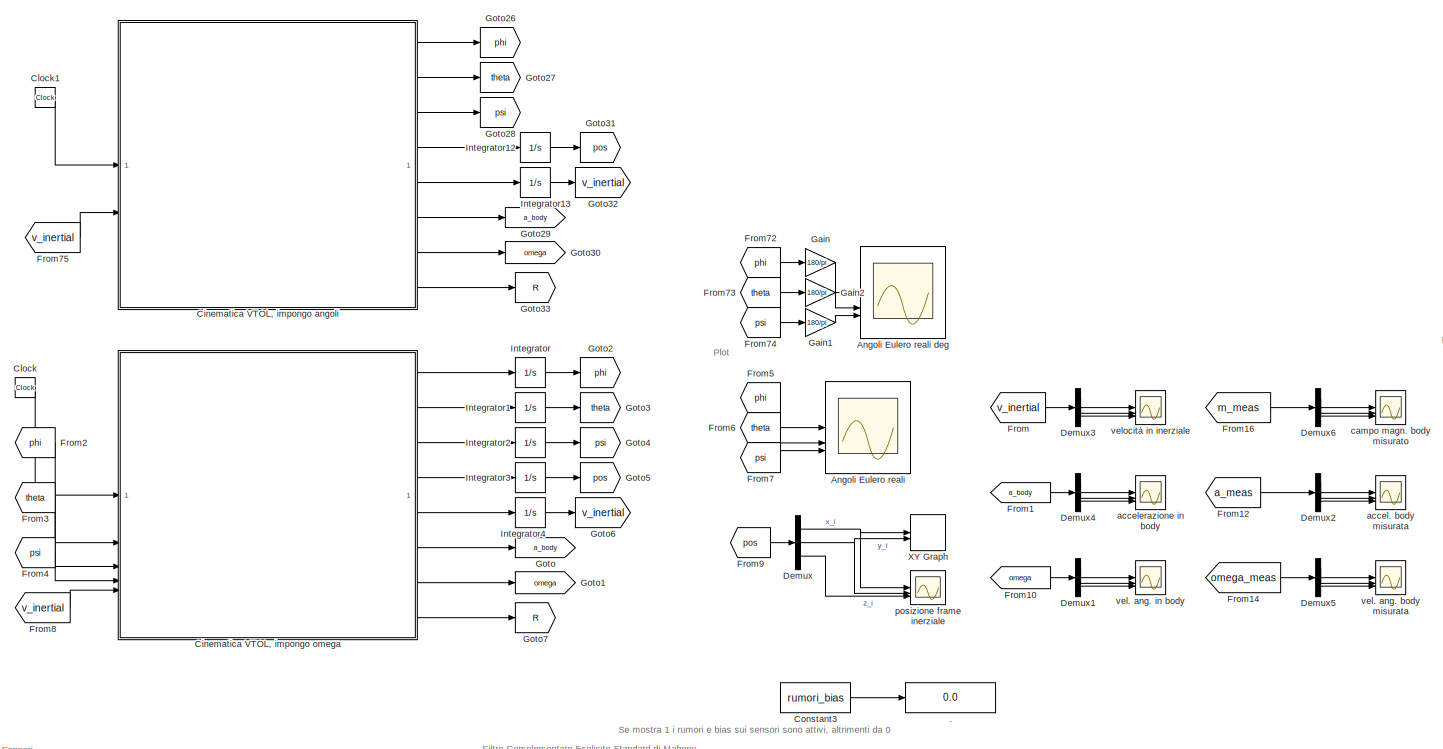
[diagram: root canvas - part 1/7, top center region]
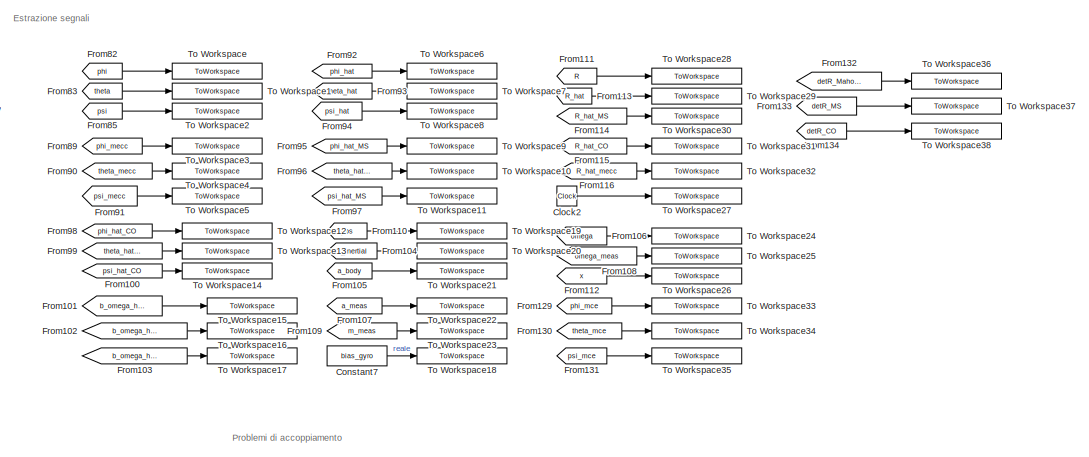
[diagram: root canvas - part 2/7, top right region]
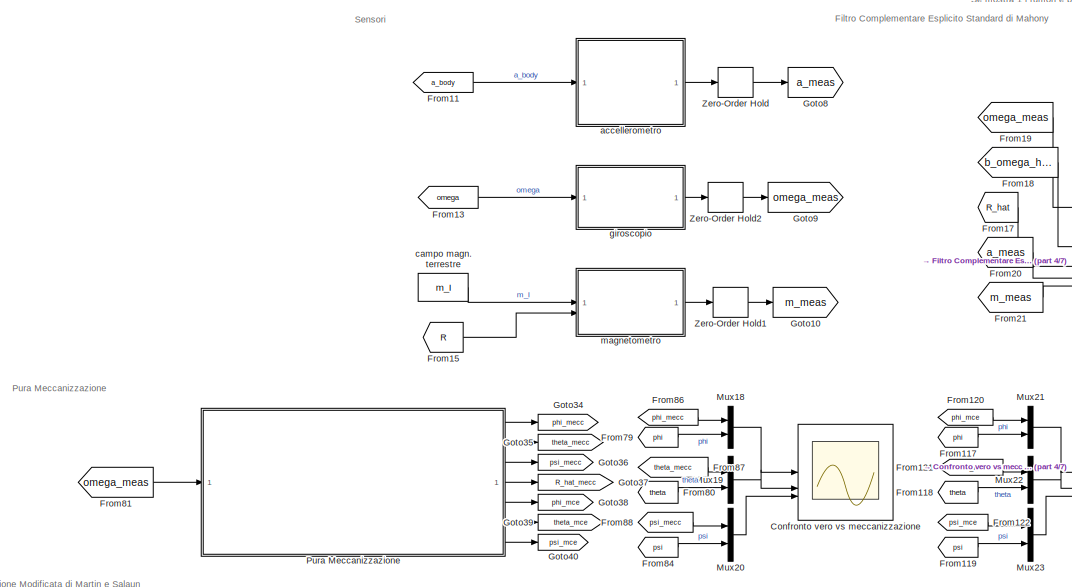
[diagram: root canvas - part 3/7, middle left region]
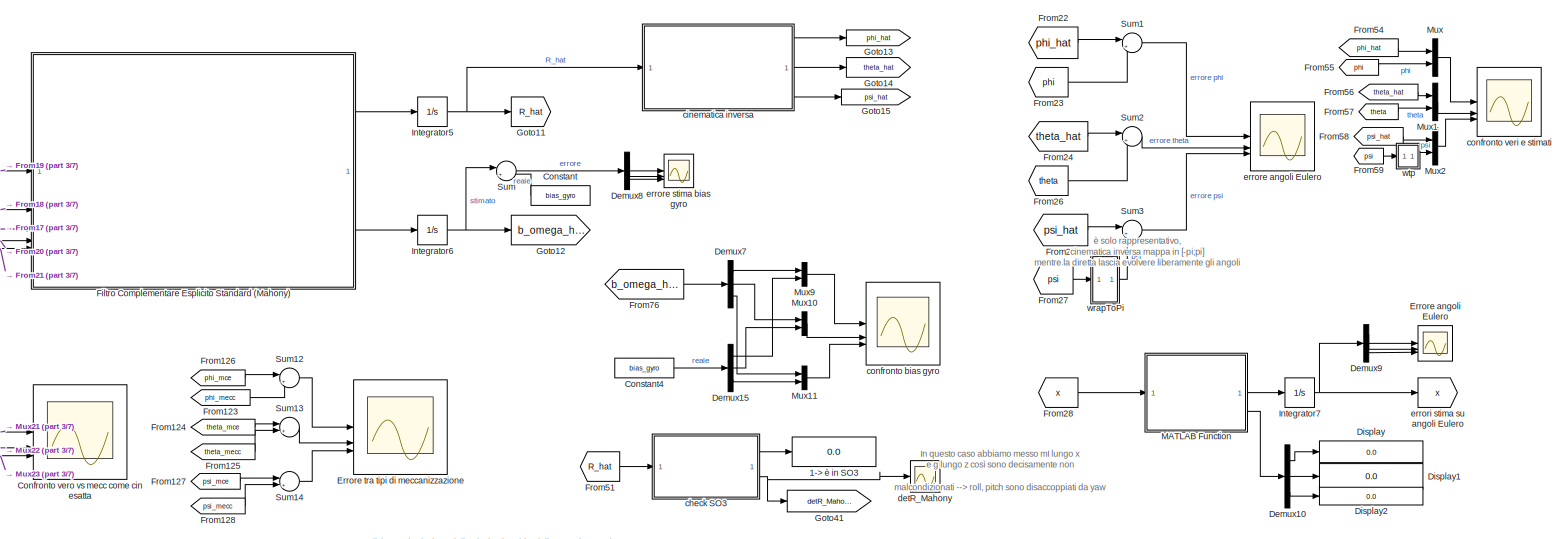
[diagram: root canvas - part 4/7, central region]
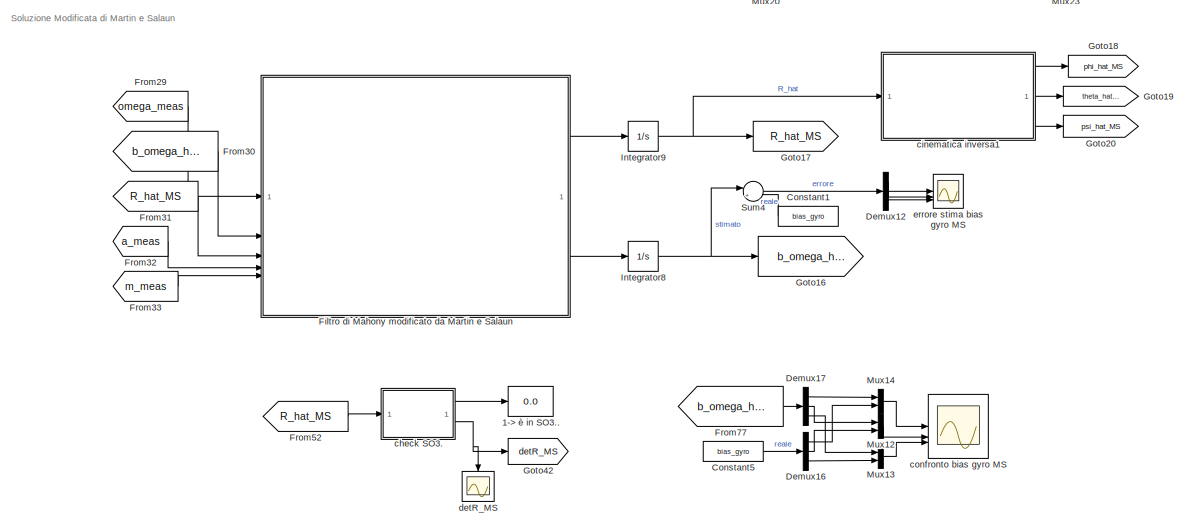
[diagram: root canvas - part 5/7, bottom left region]
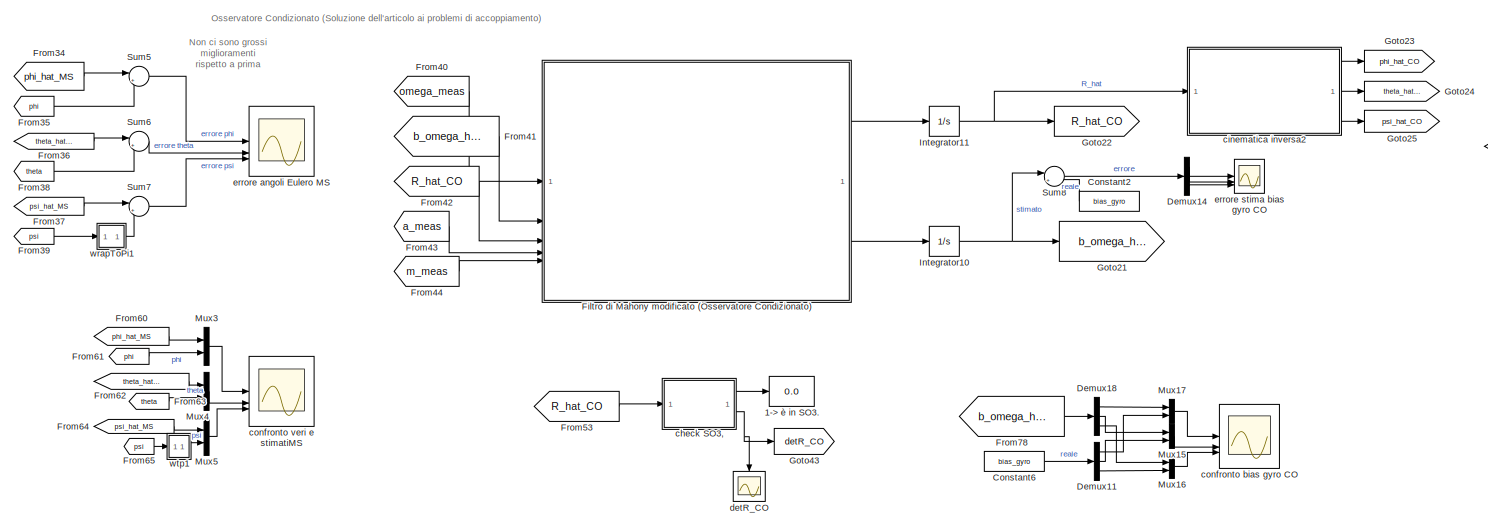
[diagram: root canvas - part 6/7, bottom center region]
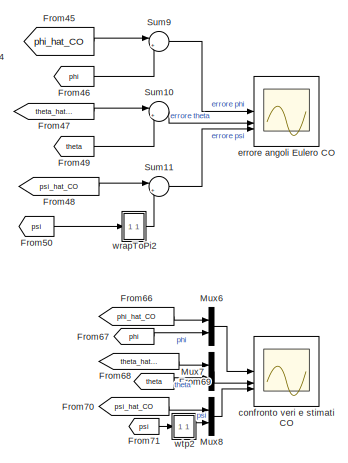
[diagram: root canvas - part 7/7, bottom right region]
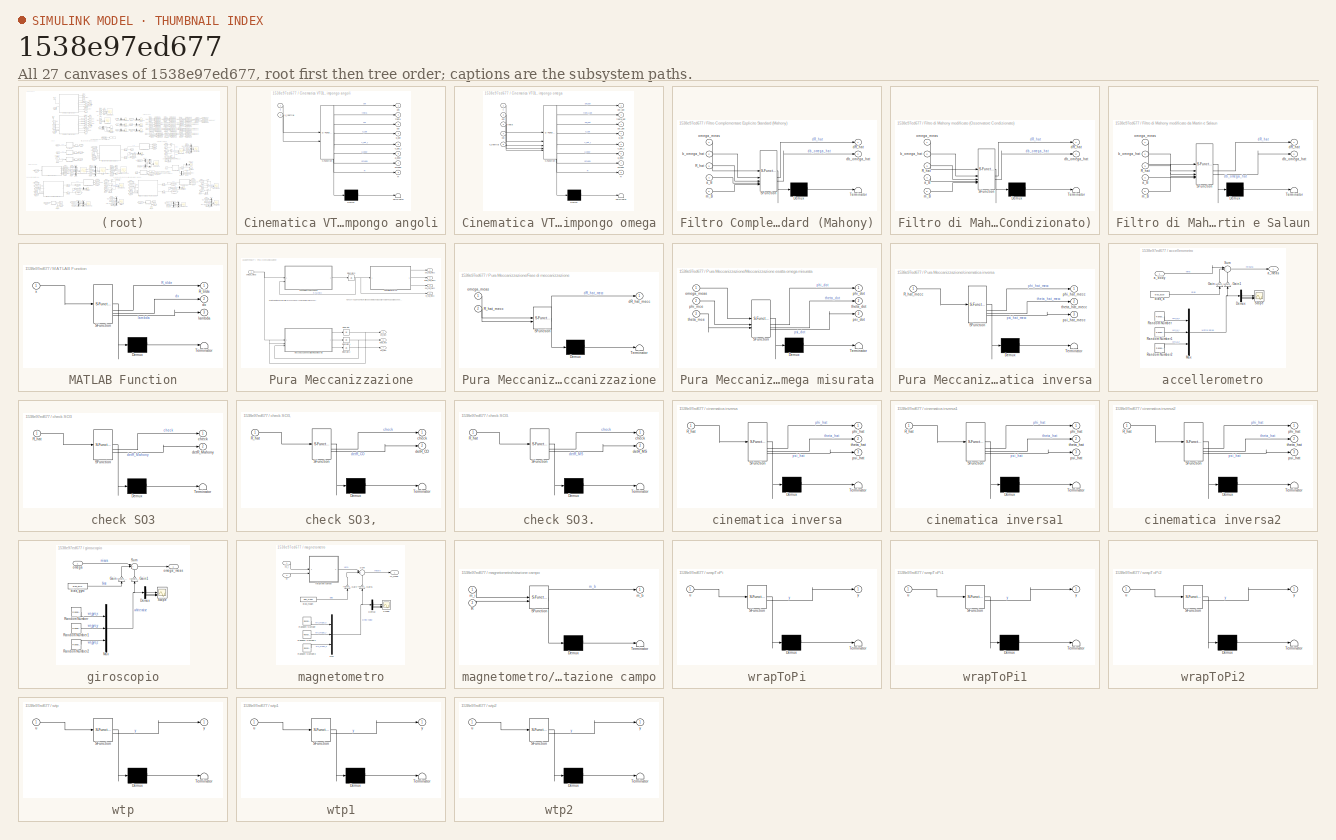
[diagram: thumbnail index - all 27 canvases of the model, root first then tree order]
MODEL slx_1538e97ed677
KIND model
CONFIG AbsTol = auto
CONFIG EnableMultiTasking = off
CONFIG FixedStep = auto
CONFIG MaxStep = auto
CONFIG MinStep = auto
CONFIG RelTol = 1e-3
CONFIG SampleTimeConstraint = Unconstrained
CONFIG SolverName = ode45
CONFIG StartTime = 0.0
CONFIG StopTime = time_max
BLOCK [Display] .
  Decimation = 1
BLOCK [Display] 1-> è in SO3
  Decimation = 1
BLOCK [Display] 1-> è in SO3.
  Decimation = 1
BLOCK [Display] 1-> è in SO3..
  Decimation = 1
BLOCK [Scope] Angoli Eulero reali
  Floating = off
  NumInputPorts = 3
  ScopeSpecificationString = Simulink.scopes.TimeScopeBlockCfg('CurrentConfiguration', extmgr.ConfigurationSet(extmgr.Configuration('Core','General UI',true,'FigureColor',[1 1 1]),extmgr.Configuration('Core','Source UI',true),extmgr.Configuration('Sources','WiredSimulink',true),extmgr.Configuration('Visuals','Time Domain',true,'SerializedDisplays',{struct('MinYLimReal','-0.91697','MaxYLimReal','1.40055','YLabelReal','\phi [ra...<+3152ch>
BLOCK [Scope] Angoli Eulero reali deg
  Floating = off
  NumInputPorts = 3
  ScopeSpecificationString = Simulink.scopes.TimeScopeBlockCfg('CurrentConfiguration', extmgr.ConfigurationSet(extmgr.Configuration('Core','General UI',true,'FigureColor',[1 1 1]),extmgr.Configuration('Core','Source UI',true),extmgr.Configuration('Sources','WiredSimulink',true,'DataLoggingVariableName','ScopeData4'),extmgr.Configuration('Visuals','Time Domain',true,'SerializedDisplays',{struct('MinYLimReal','-52.53829','MaxYL...<+3207ch>
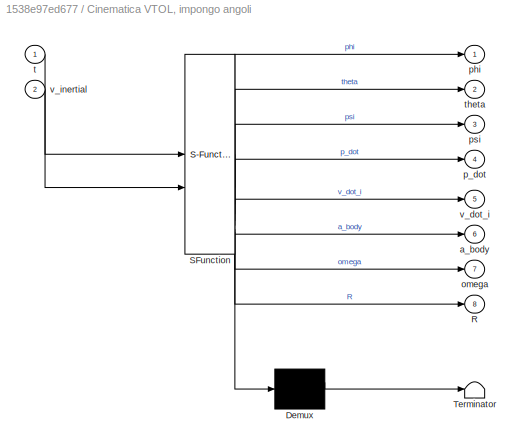
BLOCK [SubSystem] Cinematica VTOL, impongo angoli
  Commented = on
  ErrorFcn = Stateflow.Translate.translate
  LibrarySourceBlock = simulink/User-Defined\nFunctions/MATLAB Function
  PermitHierarchicalResolution = ExplicitOnly
  SFBlockType = MATLAB Function
  TreatAsAtomicUnit = on
BLOCK [Demux] Cinematica VTOL, impongo angoli/ Demux 
  Outputs = 1
BLOCK [S-Function] Cinematica VTOL, impongo angoli/ SFunction 
  EnableBusSupport = on
  FunctionName = sf_sfun
  Parameters = Phi1,Phi2,Phi3,Psi1,Psi2,Psi3,Theta1,Theta2,Theta3,e3,g,phi_0,psi_0,theta_0,w_phi1,w_phi2,w_phi3,w_psi1,w_psi2,w_psi3,w_theta1,w_theta2,w_theta3
  PortCounts = [2 9]
  SFcnIsStateOwnerBlock = off
  SFunctionDeploymentMode = off
  Tag = Stateflow S-Function 19
BLOCK [Terminator] Cinematica VTOL, impongo angoli/ Terminator 
BLOCK [Outport] Cinematica VTOL, impongo angoli/R
  Port = 8
BLOCK [Outport] Cinematica VTOL, impongo angoli/a_body
  Port = 6
BLOCK [Outport] Cinematica VTOL, impongo angoli/omega
  Port = 7
BLOCK [Outport] Cinematica VTOL, impongo angoli/p_dot
  Port = 4
BLOCK [Outport] Cinematica VTOL, impongo angoli/phi
BLOCK [Outport] Cinematica VTOL, impongo angoli/psi
  Port = 3
BLOCK [Inport] Cinematica VTOL, impongo angoli/t
BLOCK [Outport] Cinematica VTOL, impongo angoli/theta
  Port = 2
BLOCK [Outport] Cinematica VTOL, impongo angoli/v_dot_i
  Port = 5
BLOCK [Inport] Cinematica VTOL, impongo angoli/v_inertial
  Port = 2
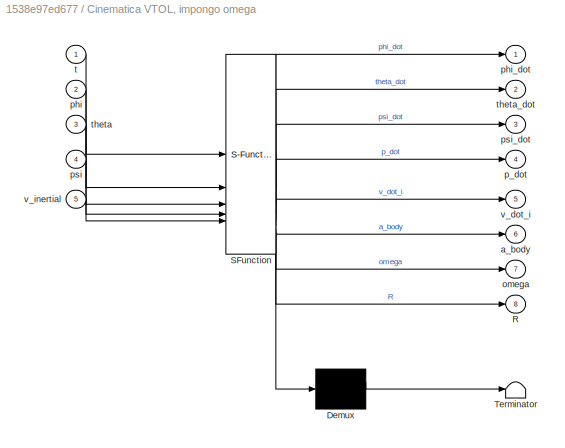
BLOCK [SubSystem] Cinematica VTOL, impongo omega
  ErrorFcn = Stateflow.Translate.translate
  LibrarySourceBlock = simulink/User-Defined\nFunctions/MATLAB Function
  PermitHierarchicalResolution = ExplicitOnly
  SFBlockType = MATLAB Function
  TreatAsAtomicUnit = on
BLOCK [Demux] Cinematica VTOL, impongo omega/ Demux 
  Outputs = 1
BLOCK [S-Function] Cinematica VTOL, impongo omega/ SFunction 
  EnableBusSupport = on
  FunctionName = sf_sfun
  Parameters = Omega11,Omega12,Omega13,Omega21,Omega22,Omega23,Omega31,Omega32,Omega33,e3,g,w_11,w_12,w_13,w_21,w_22,w_23,w_31,w_32,w_33
  PortCounts = [5 9]
  SFcnIsStateOwnerBlock = off
  SFunctionDeploymentMode = off
  Tag = Stateflow S-Function 2
BLOCK [Terminator] Cinematica VTOL, impongo omega/ Terminator 
BLOCK [Outport] Cinematica VTOL, impongo omega/R
  Port = 8
BLOCK [Outport] Cinematica VTOL, impongo omega/a_body
  Port = 6
BLOCK [Outport] Cinematica VTOL, impongo omega/omega
  Port = 7
BLOCK [Outport] Cinematica VTOL, impongo omega/p_dot
  Port = 4
BLOCK [Inport] Cinematica VTOL, impongo omega/phi
  Port = 2
BLOCK [Outport] Cinematica VTOL, impongo omega/phi_dot
BLOCK [Inport] Cinematica VTOL, impongo omega/psi
  Port = 4
BLOCK [Outport] Cinematica VTOL, impongo omega/psi_dot
  Port = 3
BLOCK [Inport] Cinematica VTOL, impongo omega/t
BLOCK [Inport] Cinematica VTOL, impongo omega/theta
  Port = 3
BLOCK [Outport] Cinematica VTOL, impongo omega/theta_dot
  Port = 2
BLOCK [Outport] Cinematica VTOL, impongo omega/v_dot_i
  Port = 5
BLOCK [Inport] Cinematica VTOL, impongo omega/v_inertial
  Port = 5
BLOCK [Clock] Clock
BLOCK [Clock] Clock1
  Commented = on
BLOCK [Clock] Clock2
BLOCK [Scope] Confronto vero vs mecc come cin esatta
  Floating = off
  NumInputPorts = 3
  ScopeSpecificationString = Simulink.scopes.TimeScopeBlockCfg('CurrentConfiguration', extmgr.ConfigurationSet(extmgr.Configuration('Core','General UI',true,'FigureColor',[1 1 1]),extmgr.Configuration('Core','Source UI',true),extmgr.Configuration('Sources','WiredSimulink',true,'DataLoggingVariableName','ScopeData1'),extmgr.Configuration('Visuals','Time Domain',true,'SerializedDisplays',{struct('MinYLimReal','-1.01597','MaxYLi...<+3651ch>
BLOCK [Scope] Confronto vero vs meccanizzazione
  Floating = off
  NumInputPorts = 3
  ScopeSpecificationString = Simulink.scopes.TimeScopeBlockCfg('CurrentConfiguration', extmgr.ConfigurationSet(extmgr.Configuration('Core','General UI',true,'FigureColor',[1 1 1]),extmgr.Configuration('Core','Source UI',true),extmgr.Configuration('Sources','WiredSimulink',true,'DataLoggingVariableName','ScopeData1'),extmgr.Configuration('Visuals','Time Domain',true,'SerializedDisplays',{struct('MinYLimReal','-1.01597','MaxYLi...<+3548ch>
BLOCK [Constant] Constant
  NameLocation = top
  Value = bias_gyro
BLOCK [Constant] Constant1
  NameLocation = top
  Value = bias_gyro
BLOCK [Constant] Constant2
  NameLocation = top
  Value = bias_gyro
BLOCK [Constant] Constant3
  Value = rumori_bias
BLOCK [Constant] Constant4
  Value = bias_gyro
BLOCK [Constant] Constant5
  Value = bias_gyro
BLOCK [Constant] Constant6
  Value = bias_gyro
BLOCK [Constant] Constant7
  Value = bias_gyro
BLOCK [Demux] Demux
  Outputs = 3
BLOCK [Demux] Demux1
  Outputs = 3
BLOCK [Demux] Demux10
  Outputs = 3
BLOCK [Demux] Demux11
  Outputs = 3
BLOCK [Demux] Demux12
  Outputs = 3
BLOCK [Demux] Demux14
  Outputs = 3
BLOCK [Demux] Demux15
  Outputs = 3
BLOCK [Demux] Demux16
  Outputs = 3
BLOCK [Demux] Demux17
  Outputs = 3
BLOCK [Demux] Demux18
  Outputs = 3
BLOCK [Demux] Demux2
  Outputs = 3
BLOCK [Demux] Demux3
  Outputs = 3
BLOCK [Demux] Demux4
  Outputs = 3
BLOCK [Demux] Demux5
  Outputs = 3
BLOCK [Demux] Demux6
  Outputs = 3
BLOCK [Demux] Demux7
  Outputs = 3
BLOCK [Demux] Demux8
  Outputs = 3
BLOCK [Demux] Demux9
  Outputs = 3
BLOCK [Display] Display
  Decimation = 1
BLOCK [Display] Display1
  Decimation = 1
BLOCK [Display] Display2
  Decimation = 1
BLOCK [Scope] Errore angoli Eulero
  Floating = off
  NumInputPorts = 3
  ScopeSpecificationString = Simulink.scopes.TimeScopeBlockCfg('CurrentConfiguration', extmgr.ConfigurationSet(extmgr.Configuration('Core','General UI',true,'FigureColor',[1 1 1]),extmgr.Configuration('Core','Source UI',true),extmgr.Configuration('Sources','WiredSimulink',true,'DataLoggingVariableName','ScopeData10'),extmgr.Configuration('Visuals','Time Domain',true,'SerializedDisplays',{struct('MinYLimReal','-0.0374','MaxYLi...<+3264ch>
BLOCK [Scope] Errore tra tipi di meccanizzazione
  Floating = off
  NumInputPorts = 3
  ScopeSpecificationString = Simulink.scopes.TimeScopeBlockCfg('CurrentConfiguration', extmgr.ConfigurationSet(extmgr.Configuration('Core','General UI',true,'FigureColor',[1 1 1]),extmgr.Configuration('Core','Source UI',true),extmgr.Configuration('Sources','WiredSimulink',true,'DataLoggingVariableName','ScopeData2'),extmgr.Configuration('Visuals','Time Domain',true,'SerializedDisplays',{struct('MinYLimReal','-0.00000000000001...<+3603ch>
BLOCK [SubSystem] Filtro Complementare Esplicito Standard (Mahony)
  ErrorFcn = Stateflow.Translate.translate
  LibrarySourceBlock = simulink/User-Defined\nFunctions/MATLAB Function
  PermitHierarchicalResolution = ExplicitOnly
  SFBlockType = MATLAB Function
  TreatAsAtomicUnit = on
BLOCK [Demux] Filtro Complementare Esplicito Standard (Mahony)/ Demux 
  Outputs = 1
BLOCK [S-Function] Filtro Complementare Esplicito Standard (Mahony)/ SFunction 
  EnableBusSupport = on
  FunctionName = sf_sfun
  Parameters = e3,g,k1,k2,k_B,m_I
  PortCounts = [5 3]
  SFcnIsStateOwnerBlock = off
  SFunctionDeploymentMode = off
  Tag = Stateflow S-Function 3
BLOCK [Terminator] Filtro Complementare Esplicito Standard (Mahony)/ Terminator 
BLOCK [Inport] Filtro Complementare Esplicito Standard (Mahony)/R_hat
  Port = 3
BLOCK [Inport] Filtro Complementare Esplicito Standard (Mahony)/a_B
  Port = 4
BLOCK [Inport] Filtro Complementare Esplicito Standard (Mahony)/b_omega_hat
  Port = 2
BLOCK [Outport] Filtro Complementare Esplicito Standard (Mahony)/dR_hat
BLOCK [Outport] Filtro Complementare Esplicito Standard (Mahony)/db_omega_hat
  Port = 2
BLOCK [Inport] Filtro Complementare Esplicito Standard (Mahony)/m_B
  Port = 5
BLOCK [Inport] Filtro Complementare Esplicito Standard (Mahony)/omega_meas
BLOCK [SubSystem] Filtro di Mahony modificato (Osservatore Condizionato)
  ErrorFcn = Stateflow.Translate.translate
  LibrarySourceBlock = simulink/User-Defined\nFunctions/MATLAB Function
  PermitHierarchicalResolution = ExplicitOnly
  SFBlockType = MATLAB Function
  TreatAsAtomicUnit = on
BLOCK [Demux] Filtro di Mahony modificato (Osservatore Condizionato)/ Demux 
  Outputs = 1
BLOCK [S-Function] Filtro di Mahony modificato (Osservatore Condizionato)/ SFunction 
  EnableBusSupport = on
  FunctionName = sf_sfun
  Parameters = Delta,e3,g,k1_CO,k2_CO,k3_CO,k4_CO,kB_CO,m_I
  PortCounts = [5 3]
  SFcnIsStateOwnerBlock = off
  SFunctionDeploymentMode = off
  Tag = Stateflow S-Function 8
BLOCK [Terminator] Filtro di Mahony modificato (Osservatore Condizionato)/ Terminator 
BLOCK [Inport] Filtro di Mahony modificato (Osservatore Condizionato)/R_hat
  Port = 3
BLOCK [Inport] Filtro di Mahony modificato (Osservatore Condizionato)/a_B
  Port = 4
BLOCK [Inport] Filtro di Mahony modificato (Osservatore Condizionato)/b_omega_hat
  Port = 2
BLOCK [Outport] Filtro di Mahony modificato (Osservatore Condizionato)/dR_hat
BLOCK [Outport] Filtro di Mahony modificato (Osservatore Condizionato)/db_omega_hat
  Port = 2
BLOCK [Inport] Filtro di Mahony modificato (Osservatore Condizionato)/m_B
  Port = 5
BLOCK [Inport] Filtro di Mahony modificato (Osservatore Condizionato)/omega_meas
BLOCK [SubSystem] Filtro di Mahony modificato da Martin e Salaun
  ErrorFcn = Stateflow.Translate.translate
  LibrarySourceBlock = simulink/User-Defined\nFunctions/MATLAB Function
  PermitHierarchicalResolution = ExplicitOnly
  SFBlockType = MATLAB Function
  TreatAsAtomicUnit = on
BLOCK [Demux] Filtro di Mahony modificato da Martin e Salaun/ Demux 
  Outputs = 1
BLOCK [S-Function] Filtro di Mahony modificato da Martin e Salaun/ SFunction 
  EnableBusSupport = on
  FunctionName = sf_sfun
  Parameters = e3,g,k1_MS,k2_MS,k_B_MS,m_I
  PortCounts = [5 3]
  SFcnIsStateOwnerBlock = off
  SFunctionDeploymentMode = off
  Tag = Stateflow S-Function 6
BLOCK [Terminator] Filtro di Mahony modificato da Martin e Salaun/ Terminator 
BLOCK [Inport] Filtro di Mahony modificato da Martin e Salaun/R_hat
  Port = 3
BLOCK [Inport] Filtro di Mahony modificato da Martin e Salaun/a_B
  Port = 4
BLOCK [Inport] Filtro di Mahony modificato da Martin e Salaun/b_omega_hat
  Port = 2
BLOCK [Outport] Filtro di Mahony modificato da Martin e Salaun/dR_hat
BLOCK [Outport] Filtro di Mahony modificato da Martin e Salaun/db_omega_hat
  Port = 2
BLOCK [Inport] Filtro di Mahony modificato da Martin e Salaun/m_B
  Port = 5
BLOCK [Inport] Filtro di Mahony modificato da Martin e Salaun/omega_meas
BLOCK [From] From
  GotoTag = v_inertial
BLOCK [From] From1
  GotoTag = a_body
BLOCK [From] From10
  GotoTag = omega
BLOCK [From] From100
  GotoTag = psi_hat_CO
BLOCK [From] From101
  GotoTag = b_omega_hat
BLOCK [From] From102
  GotoTag = b_omega_hat_MS
BLOCK [From] From103
  GotoTag = b_omega_hat_CO
BLOCK [From] From104
  GotoTag = v_inertial
BLOCK [From] From105
  GotoTag = a_body
BLOCK [From] From106
  GotoTag = omega
BLOCK [From] From107
  GotoTag = a_meas
BLOCK [From] From108
  GotoTag = omega_meas
BLOCK [From] From109
  GotoTag = m_meas
BLOCK [From] From11
  GotoTag = a_body
BLOCK [From] From110
  GotoTag = pos
BLOCK [From] From111
  GotoTag = R
BLOCK [From] From112
  GotoTag = x
BLOCK [From] From113
  GotoTag = R_hat
BLOCK [From] From114
  GotoTag = R_hat_MS
BLOCK [From] From115
  GotoTag = R_hat_CO
BLOCK [From] From116
  GotoTag = R_hat_mecc
BLOCK [From] From117
  GotoTag = phi
BLOCK [From] From118
  GotoTag = theta
BLOCK [From] From119
  GotoTag = psi
BLOCK [From] From12
  GotoTag = a_meas
BLOCK [From] From120
  GotoTag = phi_mce
BLOCK [From] From121
  GotoTag = theta_mce
BLOCK [From] From122
  GotoTag = psi_mce
BLOCK [From] From123
  GotoTag = phi_mecc
BLOCK [From] From124
  GotoTag = theta_mce
BLOCK [From] From125
  GotoTag = theta_mecc
BLOCK [From] From126
  GotoTag = phi_mce
BLOCK [From] From127
  GotoTag = psi_mce
BLOCK [From] From128
  GotoTag = psi_mecc
BLOCK [From] From129
  GotoTag = phi_mce
BLOCK [From] From13
  GotoTag = omega
BLOCK [From] From130
  GotoTag = theta_mce
BLOCK [From] From131
  GotoTag = psi_mce
BLOCK [From] From132
  GotoTag = detR_Mahony
BLOCK [From] From133
  GotoTag = detR_MS
BLOCK [From] From134
  GotoTag = detR_CO
BLOCK [From] From14
  GotoTag = omega_meas
BLOCK [From] From15
  GotoTag = R
BLOCK [From] From16
  GotoTag = m_meas
BLOCK [From] From17
  GotoTag = R_hat
BLOCK [From] From18
  GotoTag = b_omega_hat
BLOCK [From] From19
  GotoTag = omega_meas
BLOCK [From] From2
  GotoTag = phi
BLOCK [From] From20
  GotoTag = a_meas
BLOCK [From] From21
  GotoTag = m_meas
BLOCK [From] From22
  GotoTag = phi_hat
BLOCK [From] From23
  GotoTag = phi
BLOCK [From] From24
  GotoTag = theta_hat
BLOCK [From] From25
  GotoTag = psi_hat
BLOCK [From] From26
  GotoTag = theta
BLOCK [From] From27
  GotoTag = psi
BLOCK [From] From28
  GotoTag = x
BLOCK [From] From29
  GotoTag = omega_meas
BLOCK [From] From3
  GotoTag = theta
BLOCK [From] From30
  GotoTag = b_omega_hat_MS
BLOCK [From] From31
  GotoTag = R_hat_MS
BLOCK [From] From32
  GotoTag = a_meas
BLOCK [From] From33
  GotoTag = m_meas
BLOCK [From] From34
  GotoTag = phi_hat_MS
BLOCK [From] From35
  GotoTag = phi
BLOCK [From] From36
  GotoTag = theta_hat_MS
BLOCK [From] From37
  GotoTag = psi_hat_MS
BLOCK [From] From38
  GotoTag = theta
BLOCK [From] From39
  GotoTag = psi
BLOCK [From] From4
  GotoTag = psi
BLOCK [From] From40
  GotoTag = omega_meas
BLOCK [From] From41
  GotoTag = b_omega_hat_CO
BLOCK [From] From42
  GotoTag = R_hat_CO
BLOCK [From] From43
  GotoTag = a_meas
BLOCK [From] From44
  GotoTag = m_meas
BLOCK [From] From45
  GotoTag = phi_hat_CO
BLOCK [From] From46
  GotoTag = phi
BLOCK [From] From47
  GotoTag = theta_hat_CO
BLOCK [From] From48
  GotoTag = psi_hat_CO
BLOCK [From] From49
  GotoTag = theta
BLOCK [From] From5
  GotoTag = phi
BLOCK [From] From50
  GotoTag = psi
BLOCK [From] From51
  GotoTag = R_hat
BLOCK [From] From52
  GotoTag = R_hat_MS
BLOCK [From] From53
  GotoTag = R_hat_CO
BLOCK [From] From54
  GotoTag = phi_hat
BLOCK [From] From55
  GotoTag = phi
BLOCK [From] From56
  GotoTag = theta_hat
BLOCK [From] From57
  GotoTag = theta
BLOCK [From] From58
  GotoTag = psi_hat
BLOCK [From] From59
  GotoTag = psi
BLOCK [From] From6
  GotoTag = theta
BLOCK [From] From60
  GotoTag = phi_hat_MS
BLOCK [From] From61
  GotoTag = phi
BLOCK [From] From62
  GotoTag = theta_hat_MS
BLOCK [From] From63
  GotoTag = theta
BLOCK [From] From64
  GotoTag = psi_hat_MS
BLOCK [From] From65
  GotoTag = psi
BLOCK [From] From66
  GotoTag = phi_hat_CO
BLOCK [From] From67
  GotoTag = phi
BLOCK [From] From68
  GotoTag = theta_hat_CO
BLOCK [From] From69
  GotoTag = theta
BLOCK [From] From7
  GotoTag = psi
BLOCK [From] From70
  GotoTag = psi_hat_CO
BLOCK [From] From71
  GotoTag = psi
BLOCK [From] From72
  GotoTag = phi
BLOCK [From] From73
  GotoTag = theta
BLOCK [From] From74
  GotoTag = psi
BLOCK [From] From75
  Commented = on
  GotoTag = v_inertial
BLOCK [From] From76
  GotoTag = b_omega_hat
BLOCK [From] From77
  GotoTag = b_omega_hat_MS
BLOCK [From] From78
  GotoTag = b_omega_hat_CO
BLOCK [From] From79
  GotoTag = phi
BLOCK [From] From8
  GotoTag = v_inertial
BLOCK [From] From80
  GotoTag = theta
BLOCK [From] From81
  GotoTag = omega_meas
BLOCK [From] From82
  GotoTag = phi
BLOCK [From] From83
  GotoTag = theta
BLOCK [From] From84
  GotoTag = psi
BLOCK [From] From85
  GotoTag = psi
BLOCK [From] From86
  GotoTag = phi_mecc
BLOCK [From] From87
  GotoTag = theta_mecc
BLOCK [From] From88
  GotoTag = psi_mecc
BLOCK [From] From89
  GotoTag = phi_mecc
BLOCK [From] From9
  GotoTag = pos
BLOCK [From] From90
  GotoTag = theta_mecc
BLOCK [From] From91
  GotoTag = psi_mecc
BLOCK [From] From92
  GotoTag = phi_hat
BLOCK [From] From93
  GotoTag = theta_hat
BLOCK [From] From94
  GotoTag = psi_hat
BLOCK [From] From95
  GotoTag = phi_hat_MS
BLOCK [From] From96
  GotoTag = theta_hat_MS
BLOCK [From] From97
  GotoTag = psi_hat_MS
BLOCK [From] From98
  GotoTag = phi_hat_CO
  NameLocation = left
BLOCK [From] From99
  GotoTag = theta_hat_CO
BLOCK [Gain] Gain
  Gain = 180/pi
BLOCK [Gain] Gain1
  Gain = 180/pi
BLOCK [Gain] Gain2
  Gain = 180/pi
BLOCK [Goto] Goto
  GotoTag = a_body
BLOCK [Goto] Goto1
  GotoTag = omega
BLOCK [Goto] Goto10
  GotoTag = m_meas
BLOCK [Goto] Goto11
  GotoTag = R_hat
BLOCK [Goto] Goto12
  GotoTag = b_omega_hat
BLOCK [Goto] Goto13
  GotoTag = phi_hat
BLOCK [Goto] Goto14
  GotoTag = theta_hat
BLOCK [Goto] Goto15
  GotoTag = psi_hat
BLOCK [Goto] Goto16
  GotoTag = b_omega_hat_MS
BLOCK [Goto] Goto17
  GotoTag = R_hat_MS
BLOCK [Goto] Goto18
  GotoTag = phi_hat_MS
BLOCK [Goto] Goto19
  GotoTag = theta_hat_MS
BLOCK [Goto] Goto2
  GotoTag = phi
BLOCK [Goto] Goto20
  GotoTag = psi_hat_MS
BLOCK [Goto] Goto21
  GotoTag = b_omega_hat_CO
BLOCK [Goto] Goto22
  GotoTag = R_hat_CO
BLOCK [Goto] Goto23
  GotoTag = phi_hat_CO
BLOCK [Goto] Goto24
  GotoTag = theta_hat_CO
BLOCK [Goto] Goto25
  GotoTag = psi_hat_CO
BLOCK [Goto] Goto26
  Commented = on
  GotoTag = phi
BLOCK [Goto] Goto27
  Commented = on
  GotoTag = theta
BLOCK [Goto] Goto28
  Commented = on
  GotoTag = psi
BLOCK [Goto] Goto29
  Commented = on
  GotoTag = a_body
BLOCK [Goto] Goto3
  GotoTag = theta
BLOCK [Goto] Goto30
  Commented = on
  GotoTag = omega
BLOCK [Goto] Goto31
  Commented = on
  GotoTag = pos
BLOCK [Goto] Goto32
  Commented = on
  GotoTag = v_inertial
BLOCK [Goto] Goto33
  Commented = on
  GotoTag = R
BLOCK [Goto] Goto34
  GotoTag = phi_mecc
BLOCK [Goto] Goto35
  GotoTag = theta_mecc
BLOCK [Goto] Goto36
  GotoTag = psi_mecc
BLOCK [Goto] Goto37
  GotoTag = R_hat_mecc
BLOCK [Goto] Goto38
  GotoTag = phi_mce
BLOCK [Goto] Goto39
  GotoTag = theta_mce
BLOCK [Goto] Goto4
  GotoTag = psi
BLOCK [Goto] Goto40
  GotoTag = psi_mce
BLOCK [Goto] Goto41
  GotoTag = detR_Mahony
BLOCK [Goto] Goto42
  GotoTag = detR_MS
BLOCK [Goto] Goto43
  GotoTag = detR_CO
BLOCK [Goto] Goto5
  GotoTag = pos
BLOCK [Goto] Goto6
  GotoTag = v_inertial
BLOCK [Goto] Goto7
  GotoTag = R
BLOCK [Goto] Goto8
  GotoTag = a_meas
BLOCK [Goto] Goto9
  GotoTag = omega_meas
BLOCK [Integrator] Integrator
  InitialCondition = phi_0
BLOCK [Integrator] Integrator1
  InitialCondition = theta_0
BLOCK [Integrator] Integrator10
  InitialCondition = b_omega_hat0
BLOCK [Integrator] Integrator11
  InitialCondition = R0
BLOCK [Integrator] Integrator12
  Commented = on
  InitialCondition = pos_0
BLOCK [Integrator] Integrator13
  Commented = on
  InitialCondition = vel_0
BLOCK [Integrator] Integrator2
  InitialCondition = psi_0
BLOCK [Integrator] Integrator3
  InitialCondition = pos_0
BLOCK [Integrator] Integrator4
  InitialCondition = vel_0
BLOCK [Integrator] Integrator5
  InitialCondition = R0
BLOCK [Integrator] Integrator6
  InitialCondition = b_omega_hat0
BLOCK [Integrator] Integrator7
  InitialCondition = x_Mahony0
BLOCK [Integrator] Integrator8
  InitialCondition = b_omega_hat0
BLOCK [Integrator] Integrator9
  InitialCondition = R0
BLOCK [SubSystem] MATLAB Function
  ErrorFcn = Stateflow.Translate.translate
  LibrarySourceBlock = simulink/User-Defined\nFunctions/MATLAB Function
  PermitHierarchicalResolution = ExplicitOnly
  SFBlockType = MATLAB Function
  TreatAsAtomicUnit = on
BLOCK [Demux] MATLAB Function/ Demux 
  Outputs = 1
BLOCK [S-Function] MATLAB Function/ SFunction 
  EnableBusSupport = on
  FunctionName = sf_sfun
  Parameters = k1,k2,m_I
  PortCounts = [1 4]
  SFcnIsStateOwnerBlock = off
  SFunctionDeploymentMode = off
  Tag = Stateflow S-Function 5
BLOCK [Terminator] MATLAB Function/ Terminator 
BLOCK [Outport] MATLAB Function/R_tilde
BLOCK [Outport] MATLAB Function/dx
  Port = 2
BLOCK [Outport] MATLAB Function/lambda
  Port = 3
BLOCK [Inport] MATLAB Function/x
BLOCK [Mux] Mux
  DisplayOption = bar
  Inputs = 2
BLOCK [Mux] Mux1
  DisplayOption = bar
  Inputs = 2
BLOCK [Mux] Mux10
  DisplayOption = bar
  Inputs = 2
BLOCK [Mux] Mux11
  DisplayOption = bar
  Inputs = 2
BLOCK [Mux] Mux12
  DisplayOption = bar
  Inputs = 2
BLOCK [Mux] Mux13
  DisplayOption = bar
  Inputs = 2
BLOCK [Mux] Mux14
  DisplayOption = bar
  Inputs = 2
BLOCK [Mux] Mux15
  DisplayOption = bar
  Inputs = 2
BLOCK [Mux] Mux16
  DisplayOption = bar
  Inputs = 2
BLOCK [Mux] Mux17
  DisplayOption = bar
  Inputs = 2
BLOCK [Mux] Mux18
  DisplayOption = bar
  Inputs = 2
BLOCK [Mux] Mux19
  DisplayOption = bar
  Inputs = 2
BLOCK [Mux] Mux2
  DisplayOption = bar
  Inputs = 2
BLOCK [Mux] Mux20
  DisplayOption = bar
  Inputs = 2
BLOCK [Mux] Mux21
  DisplayOption = bar
  Inputs = 2
BLOCK [Mux] Mux22
  DisplayOption = bar
  Inputs = 2
BLOCK [Mux] Mux23
  DisplayOption = bar
  Inputs = 2
BLOCK [Mux] Mux3
  DisplayOption = bar
  Inputs = 2
BLOCK [Mux] Mux4
  DisplayOption = bar
  Inputs = 2
BLOCK [Mux] Mux5
  DisplayOption = bar
  Inputs = 2
BLOCK [Mux] Mux6
  DisplayOption = bar
  Inputs = 2
BLOCK [Mux] Mux7
  DisplayOption = bar
  Inputs = 2
BLOCK [Mux] Mux8
  DisplayOption = bar
  Inputs = 2
BLOCK [Mux] Mux9
  DisplayOption = bar
  Inputs = 2
BLOCK [SubSystem] Pura Meccanizzazione
BLOCK [SubSystem] Pura Meccanizzazione/Fase di meccanizzazione
  ErrorFcn = Stateflow.Translate.translate
  LibrarySourceBlock = simulink/User-Defined\nFunctions/MATLAB Function
  PermitHierarchicalResolution = ExplicitOnly
  SFBlockType = MATLAB Function
  TreatAsAtomicUnit = on
BLOCK [Demux] Pura Meccanizzazione/Fase di meccanizzazione/ Demux 
  Outputs = 1
BLOCK [S-Function] Pura Meccanizzazione/Fase di meccanizzazione/ SFunction 
  EnableBusSupport = on
  FunctionName = sf_sfun
  PortCounts = [2 2]
  SFcnIsStateOwnerBlock = off
  SFunctionDeploymentMode = off
  Tag = Stateflow S-Function 20
BLOCK [Terminator] Pura Meccanizzazione/Fase di meccanizzazione/ Terminator 
BLOCK [Inport] Pura Meccanizzazione/Fase di meccanizzazione/R_hat_mecc
  Port = 2
BLOCK [Outport] Pura Meccanizzazione/Fase di meccanizzazione/dR_hat_mecc
BLOCK [Inport] Pura Meccanizzazione/Fase di meccanizzazione/omega_meas
BLOCK [Integrator] Pura Meccanizzazione/Integrator
  InitialCondition = phi_0
BLOCK [Integrator] Pura Meccanizzazione/Integrator1
  InitialCondition = theta_0
BLOCK [Integrator] Pura Meccanizzazione/Integrator2
  InitialCondition = psi_0
BLOCK [Integrator] Pura Meccanizzazione/Integrator5
  InitialCondition = R_0_esatta
BLOCK [SubSystem] Pura Meccanizzazione/Meccanizzazione esatta omega misurata
  ErrorFcn = Stateflow.Translate.translate
  LibrarySourceBlock = simulink/User-Defined\nFunctions/MATLAB Function
  PermitHierarchicalResolution = ExplicitOnly
  SFBlockType = MATLAB Function
  TreatAsAtomicUnit = on
BLOCK [Demux] Pura Meccanizzazione/Meccanizzazione esatta omega misurata/ Demux 
  Outputs = 1
BLOCK [S-Function] Pura Meccanizzazione/Meccanizzazione esatta omega misurata/ SFunction 
  EnableBusSupport = on
  FunctionName = sf_sfun
  PortCounts = [3 4]
  SFcnIsStateOwnerBlock = off
  SFunctionDeploymentMode = off
  Tag = Stateflow S-Function 22
BLOCK [Terminator] Pura Meccanizzazione/Meccanizzazione esatta omega misurata/ Terminator 
BLOCK [Inport] Pura Meccanizzazione/Meccanizzazione esatta omega misurata/omega_meas
BLOCK [Outport] Pura Meccanizzazione/Meccanizzazione esatta omega misurata/phi_dot
BLOCK [Inport] Pura Meccanizzazione/Meccanizzazione esatta omega misurata/phi_mce
  Port = 2
BLOCK [Outport] Pura Meccanizzazione/Meccanizzazione esatta omega misurata/psi_dot
  Port = 3
BLOCK [Outport] Pura Meccanizzazione/Meccanizzazione esatta omega misurata/theta_dot
  Port = 2
BLOCK [Inport] Pura Meccanizzazione/Meccanizzazione esatta omega misurata/theta_mce
  Port = 3
BLOCK [Outport] Pura Meccanizzazione/R_hat_mecc
  Port = 4
BLOCK [SubSystem] Pura Meccanizzazione/cinematica inversa
  ErrorFcn = Stateflow.Translate.translate
  LibrarySourceBlock = simulink/User-Defined\nFunctions/MATLAB Function
  PermitHierarchicalResolution = ExplicitOnly
  SFBlockType = MATLAB Function
  TreatAsAtomicUnit = on
BLOCK [Demux] Pura Meccanizzazione/cinematica inversa/ Demux 
  Outputs = 1
BLOCK [S-Function] Pura Meccanizzazione/cinematica inversa/ SFunction 
  EnableBusSupport = on
  FunctionName = sf_sfun
  PortCounts = [1 4]
  SFcnIsStateOwnerBlock = off
  SFunctionDeploymentMode = off
  Tag = Stateflow S-Function 21
BLOCK [Terminator] Pura Meccanizzazione/cinematica inversa/ Terminator 
BLOCK [Inport] Pura Meccanizzazione/cinematica inversa/R_hat_mecc
BLOCK [Outport] Pura Meccanizzazione/cinematica inversa/phi_hat_mecc
BLOCK [Outport] Pura Meccanizzazione/cinematica inversa/psi_hat_mecc
  Port = 3
BLOCK [Outport] Pura Meccanizzazione/cinematica inversa/theta_hat_mecc
  Port = 2
BLOCK [Inport] Pura Meccanizzazione/omega_meas
BLOCK [Outport] Pura Meccanizzazione/phi_hat_mecc
BLOCK [Outport] Pura Meccanizzazione/phi_mce
  Port = 5
BLOCK [Outport] Pura Meccanizzazione/psi_hat_mecc
  Port = 3
BLOCK [Outport] Pura Meccanizzazione/psi_mce
  Port = 7
BLOCK [Outport] Pura Meccanizzazione/theta_hat_mecc
  Port = 2
BLOCK [Outport] Pura Meccanizzazione/theta_mce
  Port = 6
BLOCK [Sum] Sum
  Inputs = |+-
  NameLocation = top
BLOCK [Sum] Sum1
  Inputs = |+-
  NameLocation = top
BLOCK [Sum] Sum10
  Inputs = |+-
  NameLocation = top
BLOCK [Sum] Sum11
  Inputs = |+-
  NameLocation = top
BLOCK [Sum] Sum12
  Inputs = |+-
BLOCK [Sum] Sum13
  Inputs = |+-
BLOCK [Sum] Sum14
  Inputs = |+-
BLOCK [Sum] Sum2
  Inputs = |+-
  NameLocation = top
BLOCK [Sum] Sum3
  Inputs = |+-
  NameLocation = top
BLOCK [Sum] Sum4
  Inputs = |+-
  NameLocation = top
BLOCK [Sum] Sum5
  Inputs = |+-
  NameLocation = top
BLOCK [Sum] Sum6
  Inputs = |+-
  NameLocation = top
BLOCK [Sum] Sum7
  Inputs = |+-
  NameLocation = top
BLOCK [Sum] Sum8
  Inputs = |+-
  NameLocation = top
BLOCK [Sum] Sum9
  Inputs = |+-
  NameLocation = top
BLOCK [ToWorkspace] To Workspace
  FixptAsFi = on
  MaxDataPoints = inf
  SampleTime = -1
  SaveFormat = Timeseries
  VariableName = phi
BLOCK [ToWorkspace] To Workspace1
  FixptAsFi = on
  MaxDataPoints = inf
  SampleTime = -1
  SaveFormat = Timeseries
  VariableName = theta
BLOCK [ToWorkspace] To Workspace10
  FixptAsFi = on
  MaxDataPoints = inf
  SampleTime = -1
  SaveFormat = Timeseries
  VariableName = theta_hat_MS
BLOCK [ToWorkspace] To Workspace11
  FixptAsFi = on
  MaxDataPoints = inf
  SampleTime = -1
  SaveFormat = Timeseries
  VariableName = psi_hat_MS
BLOCK [ToWorkspace] To Workspace12
  FixptAsFi = on
  MaxDataPoints = inf
  SampleTime = -1
  SaveFormat = Timeseries
  VariableName = phi_hat_CO
BLOCK [ToWorkspace] To Workspace13
  FixptAsFi = on
  MaxDataPoints = inf
  SampleTime = -1
  SaveFormat = Timeseries
  VariableName = theta_hat_CO
BLOCK [ToWorkspace] To Workspace14
  FixptAsFi = on
  MaxDataPoints = inf
  SampleTime = -1
  SaveFormat = Timeseries
  VariableName = psi_hat_CO
BLOCK [ToWorkspace] To Workspace15
  FixptAsFi = on
  MaxDataPoints = inf
  SampleTime = -1
  SaveFormat = Timeseries
  VariableName = b_omega_Mahony
BLOCK [ToWorkspace] To Workspace16
  FixptAsFi = on
  MaxDataPoints = inf
  SampleTime = -1
  SaveFormat = Timeseries
  VariableName = b_omega_MS
BLOCK [ToWorkspace] To Workspace17
  FixptAsFi = on
  MaxDataPoints = inf
  SampleTime = -1
  SaveFormat = Timeseries
  VariableName = b_omega_CO
BLOCK [ToWorkspace] To Workspace18
  FixptAsFi = on
  MaxDataPoints = inf
  SampleTime = -1
  SaveFormat = Timeseries
  VariableName = bias_gyro
BLOCK [ToWorkspace] To Workspace19
  FixptAsFi = on
  MaxDataPoints = inf
  SampleTime = -1
  SaveFormat = Timeseries
  VariableName = pos_inertial
BLOCK [ToWorkspace] To Workspace2
  FixptAsFi = on
  MaxDataPoints = inf
  SampleTime = -1
  SaveFormat = Timeseries
  VariableName = psi
BLOCK [ToWorkspace] To Workspace20
  FixptAsFi = on
  MaxDataPoints = inf
  SampleTime = -1
  SaveFormat = Timeseries
  VariableName = vel_inertial
BLOCK [ToWorkspace] To Workspace21
  FixptAsFi = on
  MaxDataPoints = inf
  SampleTime = -1
  SaveFormat = Timeseries
  VariableName = a_body
BLOCK [ToWorkspace] To Workspace22
  FixptAsFi = on
  MaxDataPoints = inf
  SampleTime = -1
  SaveFormat = Timeseries
  VariableName = a_meas
BLOCK [ToWorkspace] To Workspace23
  FixptAsFi = on
  MaxDataPoints = inf
  SampleTime = -1
  SaveFormat = Timeseries
  VariableName = m_meas
BLOCK [ToWorkspace] To Workspace24
  FixptAsFi = on
  MaxDataPoints = inf
  SampleTime = -1
  SaveFormat = Timeseries
  VariableName = omega
BLOCK [ToWorkspace] To Workspace25
  FixptAsFi = on
  MaxDataPoints = inf
  SampleTime = -1
  SaveFormat = Timeseries
  VariableName = omega_meas
BLOCK [ToWorkspace] To Workspace26
  FixptAsFi = on
  MaxDataPoints = inf
  SampleTime = -1
  SaveFormat = Timeseries
  VariableName = err_stima_Eul_lin
BLOCK [ToWorkspace] To Workspace27
  FixptAsFi = on
  MaxDataPoints = inf
  SampleTime = -1
  VariableName = time
BLOCK [ToWorkspace] To Workspace28
  FixptAsFi = on
  MaxDataPoints = inf
  SampleTime = -1
  VariableName = R_vera
BLOCK [ToWorkspace] To Workspace29
  FixptAsFi = on
  MaxDataPoints = inf
  SampleTime = -1
  VariableName = R_hat_Mahony
BLOCK [ToWorkspace] To Workspace3
  FixptAsFi = on
  MaxDataPoints = inf
  SampleTime = -1
  SaveFormat = Timeseries
  VariableName = phi_mecc
BLOCK [ToWorkspace] To Workspace30
  FixptAsFi = on
  MaxDataPoints = inf
  SampleTime = -1
  VariableName = R_hat_MS
BLOCK [ToWorkspace] To Workspace31
  FixptAsFi = on
  MaxDataPoints = inf
  SampleTime = -1
  VariableName = R_hat_CO
BLOCK [ToWorkspace] To Workspace32
  FixptAsFi = on
  MaxDataPoints = inf
  SampleTime = -1
  VariableName = R_hat_mecc
BLOCK [ToWorkspace] To Workspace33
  FixptAsFi = on
  MaxDataPoints = inf
  SampleTime = -1
  SaveFormat = Timeseries
  VariableName = phi_mce
BLOCK [ToWorkspace] To Workspace34
  FixptAsFi = on
  MaxDataPoints = inf
  SampleTime = -1
  SaveFormat = Timeseries
  VariableName = theta_mce
BLOCK [ToWorkspace] To Workspace35
  FixptAsFi = on
  MaxDataPoints = inf
  SampleTime = -1
  SaveFormat = Timeseries
  VariableName = psi_mce
BLOCK [ToWorkspace] To Workspace36
  FixptAsFi = on
  MaxDataPoints = inf
  SampleTime = -1
  SaveFormat = Timeseries
  VariableName = detR_Mahony
BLOCK [ToWorkspace] To Workspace37
  FixptAsFi = on
  MaxDataPoints = inf
  SampleTime = -1
  SaveFormat = Timeseries
  VariableName = detR_MS
BLOCK [ToWorkspace] To Workspace38
  FixptAsFi = on
  MaxDataPoints = inf
  SampleTime = -1
  SaveFormat = Timeseries
  VariableName = detR_CO
BLOCK [ToWorkspace] To Workspace4
  FixptAsFi = on
  MaxDataPoints = inf
  SampleTime = -1
  SaveFormat = Timeseries
  VariableName = theta_mecc
BLOCK [ToWorkspace] To Workspace5
  FixptAsFi = on
  MaxDataPoints = inf
  SampleTime = -1
  SaveFormat = Timeseries
  VariableName = psi_mecc
BLOCK [ToWorkspace] To Workspace6
  FixptAsFi = on
  MaxDataPoints = inf
  SampleTime = -1
  SaveFormat = Timeseries
  VariableName = phi_hat_Mahony
BLOCK [ToWorkspace] To Workspace7
  FixptAsFi = on
  MaxDataPoints = inf
  SampleTime = -1
  SaveFormat = Timeseries
  VariableName = theta_hat_Mahony
BLOCK [ToWorkspace] To Workspace8
  FixptAsFi = on
  MaxDataPoints = inf
  SampleTime = -1
  SaveFormat = Timeseries
  VariableName = psi_hat_Mahony
BLOCK [ToWorkspace] To Workspace9
  FixptAsFi = on
  MaxDataPoints = inf
  SampleTime = -1
  SaveFormat = Timeseries
  VariableName = phi_hat_MS
BLOCK [Record] XY Graph
  CompatibilityTag = XY
  FileSettingsInternal = {"entries":[{"content":{"excelSettings":{"content":{},"type":"Streamout.ExcelSettings"}},"type":"Streamout.FileSettingStorage","uuid":"1bb055d0-a70c-4173-8516-ac4b5ad9ec40"}],"packageUris":["http://schema.mathworks.com/mf0/streamout_blocks/R2020a"],"version":"1.0"}
  Layout = [1 1]
  SignalsInternal = {"entries":[{"content":{"signals":[{"content":{"blockPath":["Filtri_Dinamici/XY Graph"],"channel":[],"dimensions":[1,1],"domain":"Filtri_Dinamici/XY Graph","lineColor":"#a2142f","plots":[1],"port":1,"sid":[""],"signalID":2126,"signalName":"x_i"},"type":"RecordBlkView.Signal","uuid":"c40f1304-f7aa-464d-a0d5-21e988c50381"},{"content":{"blockPath":["Filtri_Dinamici/XY Graph"],"channel":[],"dimensions...<+387ch>
  VisualizationBindings = {"xyplotplugin":{"info":[{"series":[{"bindingParametersList":[{"parameter":"X-Axis","signalID":2126,"signalName":"x_i"},{"parameter":"Y-Axis","signalID":2130,"signalName":"y_i"}],"seriesID":17403}],"subplotID":1}]}}
BLOCK [ZeroOrderHold] Zero-Order Hold
  SampleTime = dt
BLOCK [ZeroOrderHold] Zero-Order Hold1
  SampleTime = dt
BLOCK [ZeroOrderHold] Zero-Order Hold2
  SampleTime = dt
BLOCK [Scope] accel. body misurata
  Floating = off
  NumInputPorts = 3
  ScopeSpecificationString = Simulink.scopes.TimeScopeBlockCfg('CurrentConfiguration', extmgr.ConfigurationSet(extmgr.Configuration('Core','General UI',true,'FigureColor',[1 1 1]),extmgr.Configuration('Core','Source UI',true),extmgr.Configuration('Sources','WiredSimulink',true,'DataLoggingVariableName','ScopeData1'),extmgr.Configuration('Visuals','Time Domain',true,'SerializedDisplays',{struct('MinYLimReal','-9.68867','MaxYLi...<+3261ch>
BLOCK [Scope] accelerazione in body
  Floating = off
  NumInputPorts = 3
  ScopeSpecificationString = Simulink.scopes.TimeScopeBlockCfg('CurrentConfiguration', extmgr.ConfigurationSet(extmgr.Configuration('Core','General UI',true,'FigureColor',[1 1 1]),extmgr.Configuration('Core','Source UI',true),extmgr.Configuration('Sources','WiredSimulink',true,'DataLoggingVariableName','ScopeData5'),extmgr.Configuration('Visuals','Time Domain',true,'SerializedDisplays',{struct('MinYLimReal','-5.48584','MaxYLi...<+3223ch>
BLOCK [SubSystem] accellerometro
BLOCK [Demux] accellerometro/Demux
  Outputs = 3
BLOCK [Gain] accellerometro/Gain
  Gain = rumori_bias
  NameLocation = right
BLOCK [Gain] accellerometro/Gain1
  Gain = rumori_bias
  NameLocation = right
BLOCK [Mux] accellerometro/Mux
  DisplayOption = bar
  Inputs = 3
BLOCK [RandomNumber] accellerometro/Random Number
  SampleTime = dt
  Seed = 1
  Variance = dev_std_a_x^2
BLOCK [RandomNumber] accellerometro/Random Number1
  SampleTime = dt
  Seed = 2
  Variance = dev_std_a_y^2
BLOCK [RandomNumber] accellerometro/Random Number2
  SampleTime = dt
  Seed = 3
  Variance = dev_std_a_z^2
BLOCK [Scope] accellerometro/Scope
  Floating = off
  NumInputPorts = 3
  ScopeSpecificationString = Simulink.scopes.TimeScopeBlockCfg('CurrentConfiguration', extmgr.ConfigurationSet(extmgr.Configuration('Core','General UI',true),extmgr.Configuration('Core','Source UI',true),extmgr.Configuration('Sources','WiredSimulink',true,'DataLoggingVariableName','ScopeData2'),extmgr.Configuration('Visuals','Time Domain',true,'SerializedDisplays',{struct('MinYLimReal','-0.54972','MaxYLimReal','0.59919','YLab...<+2742ch>
BLOCK [Sum] accellerometro/Sum
  Inputs = |+++
BLOCK [Inport] accellerometro/a_body
BLOCK [Outport] accellerometro/a_meas
BLOCK [Constant] accellerometro/bias_a
  Value = bias_accel
BLOCK [Scope] campo magn. body misurato
  Floating = off
  NumInputPorts = 3
  ScopeSpecificationString = Simulink.scopes.TimeScopeBlockCfg('CurrentConfiguration', extmgr.ConfigurationSet(extmgr.Configuration('Core','General UI',true,'FigureColor',[1 1 1]),extmgr.Configuration('Core','Source UI',true),extmgr.Configuration('Sources','WiredSimulink',true,'DataLoggingVariableName','ScopeData6'),extmgr.Configuration('Visuals','Time Domain',true,'SerializedDisplays',{struct('MinYLimReal','-0.39259','MaxYLi...<+3247ch>
BLOCK [Constant] campo magn. terrestre
  Value = m_I
BLOCK [SubSystem] check SO3
  ErrorFcn = Stateflow.Translate.translate
  LibrarySourceBlock = simulink/User-Defined\nFunctions/MATLAB Function
  PermitHierarchicalResolution = ExplicitOnly
  SFBlockType = MATLAB Function
  TreatAsAtomicUnit = on
BLOCK [SubSystem] check SO3,
  ErrorFcn = Stateflow.Translate.translate
  LibrarySourceBlock = simulink/User-Defined\nFunctions/MATLAB Function
  PermitHierarchicalResolution = ExplicitOnly
  SFBlockType = MATLAB Function
  TreatAsAtomicUnit = on
BLOCK [Demux] check SO3,/ Demux 
  Outputs = 1
BLOCK [S-Function] check SO3,/ SFunction 
  EnableBusSupport = on
  FunctionName = sf_sfun
  PortCounts = [1 3]
  SFcnIsStateOwnerBlock = off
  SFunctionDeploymentMode = off
  Tag = Stateflow S-Function 12
BLOCK [Terminator] check SO3,/ Terminator 
BLOCK [Inport] check SO3,/R_hat
BLOCK [Outport] check SO3,/check
BLOCK [Outport] check SO3,/detR_CO
  Port = 2
BLOCK [SubSystem] check SO3.
  ErrorFcn = Stateflow.Translate.translate
  LibrarySourceBlock = simulink/User-Defined\nFunctions/MATLAB Function
  PermitHierarchicalResolution = ExplicitOnly
  SFBlockType = MATLAB Function
  TreatAsAtomicUnit = on
BLOCK [Demux] check SO3./ Demux 
  Outputs = 1
BLOCK [S-Function] check SO3./ SFunction 
  EnableBusSupport = on
  FunctionName = sf_sfun
  PortCounts = [1 3]
  SFcnIsStateOwnerBlock = off
  SFunctionDeploymentMode = off
  Tag = Stateflow S-Function 11
BLOCK [Terminator] check SO3./ Terminator 
BLOCK [Inport] check SO3./R_hat
BLOCK [Outport] check SO3./check
BLOCK [Outport] check SO3./detR_MS
  Port = 2
BLOCK [Demux] check SO3/ Demux 
  Outputs = 1
BLOCK [S-Function] check SO3/ SFunction 
  EnableBusSupport = on
  FunctionName = sf_sfun
  PortCounts = [1 3]
  SFcnIsStateOwnerBlock = off
  SFunctionDeploymentMode = off
  Tag = Stateflow S-Function 10
BLOCK [Terminator] check SO3/ Terminator 
BLOCK [Inport] check SO3/R_hat
BLOCK [Outport] check SO3/check
BLOCK [Outport] check SO3/detR_Mahony
  Port = 2
BLOCK [SubSystem] cinematica inversa
  ErrorFcn = Stateflow.Translate.translate
  LibrarySourceBlock = simulink/User-Defined\nFunctions/MATLAB Function
  PermitHierarchicalResolution = ExplicitOnly
  SFBlockType = MATLAB Function
  TreatAsAtomicUnit = on
BLOCK [Demux] cinematica inversa/ Demux 
  Outputs = 1
BLOCK [S-Function] cinematica inversa/ SFunction 
  EnableBusSupport = on
  FunctionName = sf_sfun
  PortCounts = [1 4]
  SFcnIsStateOwnerBlock = off
  SFunctionDeploymentMode = off
  Tag = Stateflow S-Function 4
BLOCK [Terminator] cinematica inversa/ Terminator 
BLOCK [Inport] cinematica inversa/R_hat
BLOCK [Outport] cinematica inversa/phi_hat
BLOCK [Outport] cinematica inversa/psi_hat
  Port = 3
BLOCK [Outport] cinematica inversa/theta_hat
  Port = 2
BLOCK [SubSystem] cinematica inversa1
  ErrorFcn = Stateflow.Translate.translate
  LibrarySourceBlock = simulink/User-Defined\nFunctions/MATLAB Function
  PermitHierarchicalResolution = ExplicitOnly
  SFBlockType = MATLAB Function
  TreatAsAtomicUnit = on
BLOCK [Demux] cinematica inversa1/ Demux 
  Outputs = 1
BLOCK [S-Function] cinematica inversa1/ SFunction 
  EnableBusSupport = on
  FunctionName = sf_sfun
  PortCounts = [1 4]
  SFcnIsStateOwnerBlock = off
  SFunctionDeploymentMode = off
  Tag = Stateflow S-Function 7
BLOCK [Terminator] cinematica inversa1/ Terminator 
BLOCK [Inport] cinematica inversa1/R_hat
BLOCK [Outport] cinematica inversa1/phi_hat
BLOCK [Outport] cinematica inversa1/psi_hat
  Port = 3
BLOCK [Outport] cinematica inversa1/theta_hat
  Port = 2
BLOCK [SubSystem] cinematica inversa2
  ErrorFcn = Stateflow.Translate.translate
  LibrarySourceBlock = simulink/User-Defined\nFunctions/MATLAB Function
  PermitHierarchicalResolution = ExplicitOnly
  SFBlockType = MATLAB Function
  TreatAsAtomicUnit = on
BLOCK [Demux] cinematica inversa2/ Demux 
  Outputs = 1
BLOCK [S-Function] cinematica inversa2/ SFunction 
  EnableBusSupport = on
  FunctionName = sf_sfun
  PortCounts = [1 4]
  SFcnIsStateOwnerBlock = off
  SFunctionDeploymentMode = off
  Tag = Stateflow S-Function 9
BLOCK [Terminator] cinematica inversa2/ Terminator 
BLOCK [Inport] cinematica inversa2/R_hat
BLOCK [Outport] cinematica inversa2/phi_hat
BLOCK [Outport] cinematica inversa2/psi_hat
  Port = 3
BLOCK [Outport] cinematica inversa2/theta_hat
  Port = 2
BLOCK [Scope] confronto bias gyro 
  Floating = off
  NumInputPorts = 3
  ScopeSpecificationString = Simulink.scopes.TimeScopeBlockCfg('CurrentConfiguration', extmgr.ConfigurationSet(extmgr.Configuration('Core','General UI',true,'FigureColor',[1 1 1]),extmgr.Configuration('Core','Source UI',true),extmgr.Configuration('Sources','WiredSimulink',true,'DataLoggingVariableName','ScopeData7'),extmgr.Configuration('Visuals','Time Domain',true,'SerializedDisplays',{struct('MinYLimReal','-0.00702','MaxYLi...<+3555ch>
BLOCK [Scope] confronto bias gyro CO
  Floating = off
  NumInputPorts = 3
  ScopeSpecificationString = Simulink.scopes.TimeScopeBlockCfg('CurrentConfiguration', extmgr.ConfigurationSet(extmgr.Configuration('Core','General UI',true,'FigureColor',[1 1 1]),extmgr.Configuration('Core','Source UI',true),extmgr.Configuration('Sources','WiredSimulink',true,'DataLoggingVariableName','ScopeData2'),extmgr.Configuration('Visuals','Time Domain',true,'SerializedDisplays',{struct('MinYLimReal','-0.00726','MaxYLi...<+3558ch>
BLOCK [Scope] confronto bias gyro MS
  Floating = off
  NumInputPorts = 3
  ScopeSpecificationString = Simulink.scopes.TimeScopeBlockCfg('CurrentConfiguration', extmgr.ConfigurationSet(extmgr.Configuration('Core','General UI',true,'FigureColor',[1 1 1]),extmgr.Configuration('Core','Source UI',true),extmgr.Configuration('Sources','WiredSimulink',true,'DataLoggingVariableName','ScopeData1'),extmgr.Configuration('Visuals','Time Domain',true,'SerializedDisplays',{struct('MinYLimReal','-0.00751','MaxYLi...<+3560ch>
BLOCK [Scope] confronto veri e stimati
  Floating = off
  NumInputPorts = 3
  ScopeSpecificationString = Simulink.scopes.TimeScopeBlockCfg('CurrentConfiguration', extmgr.ConfigurationSet(extmgr.Configuration('Core','General UI',true,'FigureColor',[1 1 1]),extmgr.Configuration('Core','Source UI',true),extmgr.Configuration('Sources','WiredSimulink',true,'DataLoggingVariableName','ScopeData1'),extmgr.Configuration('Visuals','Time Domain',true,'SerializedDisplays',{struct('MinYLimReal','-0.85965','MaxYLi...<+3590ch>
BLOCK [Scope] confronto veri e stimati CO
  Floating = off
  NumInputPorts = 3
  ScopeSpecificationString = Simulink.scopes.TimeScopeBlockCfg('CurrentConfiguration', extmgr.ConfigurationSet(extmgr.Configuration('Core','General UI',true,'FigureColor',[1 1 1]),extmgr.Configuration('Core','Source UI',true),extmgr.Configuration('Sources','WiredSimulink',true,'DataLoggingVariableName','ScopeData3'),extmgr.Configuration('Visuals','Time Domain',true,'SerializedDisplays',{struct('MinYLimReal','-0.91824','MaxYLi...<+3585ch>
BLOCK [Scope] confronto veri e stimatiMS
  Floating = off
  NumInputPorts = 3
  ScopeSpecificationString = Simulink.scopes.TimeScopeBlockCfg('CurrentConfiguration', extmgr.ConfigurationSet(extmgr.Configuration('Core','General UI',true,'FigureColor',[1 1 1]),extmgr.Configuration('Core','Source UI',true),extmgr.Configuration('Sources','WiredSimulink',true,'DataLoggingVariableName','ScopeData2'),extmgr.Configuration('Visuals','Time Domain',true,'SerializedDisplays',{struct('MinYLimReal','-0.54192','MaxYLi...<+3592ch>
BLOCK [Scope] detR_CO
  Floating = off
  NameLocation = left
  NumInputPorts = 1
  ScopeSpecificationString = Simulink.scopes.TimeScopeBlockCfg('CurrentConfiguration', extmgr.ConfigurationSet(extmgr.Configuration('Core','General UI',true,'FigureColor',[1 1 1]),extmgr.Configuration('Core','Source UI',true),extmgr.Configuration('Sources','WiredSimulink',true,'DataLoggingVariableName','ScopeData5','DataLoggingSaveFormat','Array','DataLoggingLimitDataPoints',true,'DataLoggingDecimation','1'),extmgr.Configurat...<+1997ch>
BLOCK [Scope] detR_MS
  Floating = off
  NameLocation = left
  NumInputPorts = 1
  ScopeSpecificationString = Simulink.scopes.TimeScopeBlockCfg('CurrentConfiguration', extmgr.ConfigurationSet(extmgr.Configuration('Core','General UI',true,'FigureColor',[1 1 1]),extmgr.Configuration('Core','Source UI',true),extmgr.Configuration('Sources','WiredSimulink',true,'DataLoggingVariableName','ScopeData4','DataLoggingSaveFormat','Array','DataLoggingLimitDataPoints',true,'DataLoggingDecimation','1'),extmgr.Configurat...<+1983ch>
BLOCK [Scope] detR_Mahony
  Floating = off
  NumInputPorts = 1
  ScopeSpecificationString = Simulink.scopes.TimeScopeBlockCfg('CurrentConfiguration', extmgr.ConfigurationSet(extmgr.Configuration('Core','General UI',true,'FigureColor',[1 1 1]),extmgr.Configuration('Core','Source UI',true),extmgr.Configuration('Sources','WiredSimulink',true,'DataLoggingVariableName','ScopeData3','DataLoggingSaveFormat','Array','DataLoggingLimitDataPoints',true,'DataLoggingDecimation','1'),extmgr.Configurat...<+1960ch>
BLOCK [Scope] errore angoli Eulero
  Floating = off
  NumInputPorts = 3
  ScopeSpecificationString = Simulink.scopes.TimeScopeBlockCfg('CurrentConfiguration', extmgr.ConfigurationSet(extmgr.Configuration('Core','General UI',true,'FigureColor',[1 1 1]),extmgr.Configuration('Core','Source UI',true),extmgr.Configuration('Sources','WiredSimulink',true,'DataLoggingVariableName','ScopeData9'),extmgr.Configuration('Visuals','Time Domain',true,'SerializedDisplays',{struct('MinYLimReal','-0.29823','MaxYLi...<+3272ch>
BLOCK [Scope] errore angoli Eulero CO
  Floating = off
  NumInputPorts = 3
  ScopeSpecificationString = Simulink.scopes.TimeScopeBlockCfg('CurrentConfiguration', extmgr.ConfigurationSet(extmgr.Configuration('Core','General UI',true,'FigureColor',[1 1 1]),extmgr.Configuration('Core','Source UI',true),extmgr.Configuration('Sources','WiredSimulink',true,'DataLoggingVariableName','ScopeData5'),extmgr.Configuration('Visuals','Time Domain',true,'SerializedDisplays',{struct('MinYLimReal','-0.29685','MaxYLi...<+3272ch>
BLOCK [Scope] errore angoli Eulero MS
  Floating = off
  NumInputPorts = 3
  ScopeSpecificationString = Simulink.scopes.TimeScopeBlockCfg('CurrentConfiguration', extmgr.ConfigurationSet(extmgr.Configuration('Core','General UI',true,'FigureColor',[1 1 1]),extmgr.Configuration('Core','Source UI',true),extmgr.Configuration('Sources','WiredSimulink',true,'DataLoggingVariableName','ScopeData3'),extmgr.Configuration('Visuals','Time Domain',true,'SerializedDisplays',{struct('MinYLimReal','0.00059','MaxYLim...<+3273ch>
BLOCK [Scope] errore stima bias gyro
  Floating = off
  NumInputPorts = 3
  ScopeSpecificationString = Simulink.scopes.TimeScopeBlockCfg('CurrentConfiguration', extmgr.ConfigurationSet(extmgr.Configuration('Core','General UI',true,'FigureColor',[1 1 1]),extmgr.Configuration('Core','Source UI',true),extmgr.Configuration('Sources','WiredSimulink',true,'DataLoggingVariableName','ScopeData8'),extmgr.Configuration('Visuals','Time Domain',true,'SerializedDisplays',{struct('MinYLimReal','-0.00943','MaxYLi...<+3230ch>
BLOCK [Scope] errore stima bias gyro CO
  Floating = off
  NumInputPorts = 3
  ScopeSpecificationString = Simulink.scopes.TimeScopeBlockCfg('CurrentConfiguration', extmgr.ConfigurationSet(extmgr.Configuration('Core','General UI',true,'FigureColor',[1 1 1]),extmgr.Configuration('Core','Source UI',true),extmgr.Configuration('Sources','WiredSimulink',true,'DataLoggingVariableName','ScopeData6'),extmgr.Configuration('Visuals','Time Domain',true,'SerializedDisplays',{struct('MinYLimReal','-0.00976','MaxYLi...<+3206ch>
BLOCK [Scope] errore stima bias gyro MS
  Floating = off
  NumInputPorts = 3
  ScopeSpecificationString = Simulink.scopes.TimeScopeBlockCfg('CurrentConfiguration', extmgr.ConfigurationSet(extmgr.Configuration('Core','General UI',true,'FigureColor',[1 1 1]),extmgr.Configuration('Core','Source UI',true),extmgr.Configuration('Sources','WiredSimulink',true,'DataLoggingVariableName','ScopeData2'),extmgr.Configuration('Visuals','Time Domain',true,'SerializedDisplays',{struct('MinYLimReal','-0.0553','MaxYLim...<+3225ch>
BLOCK [Goto] errori stima su angoli Eulero
  GotoTag = x
BLOCK [SubSystem] giroscopio
BLOCK [Demux] giroscopio/Demux
  Outputs = 3
BLOCK [Gain] giroscopio/Gain
  Gain = rumori_bias
  NameLocation = right
BLOCK [Gain] giroscopio/Gain1
  Gain = rumori_bias
  NameLocation = right
BLOCK [Mux] giroscopio/Mux
  DisplayOption = bar
  Inputs = 3
BLOCK [RandomNumber] giroscopio/Random Number
  SampleTime = dt
  Seed = 4
  Variance = dev_std_gyro_x^2
BLOCK [RandomNumber] giroscopio/Random Number1
  SampleTime = dt
  Seed = 5
  Variance = dev_std_gyro_y^2
BLOCK [RandomNumber] giroscopio/Random Number2
  SampleTime = dt
  Seed = 6
  Variance = dev_std_gyro_z^2
BLOCK [Scope] giroscopio/Scope
  Floating = off
  NumInputPorts = 3
  ScopeSpecificationString = Simulink.scopes.TimeScopeBlockCfg('CurrentConfiguration', extmgr.ConfigurationSet(extmgr.Configuration('Core','General UI',true),extmgr.Configuration('Core','Source UI',true),extmgr.Configuration('Sources','WiredSimulink',true,'DataLoggingVariableName','ScopeData3'),extmgr.Configuration('Visuals','Time Domain',true,'SerializedDisplays',{struct('MinYLimReal','-2.44619','MaxYLimReal','2.2616','YLabe...<+2741ch>
BLOCK [Sum] giroscopio/Sum
  Inputs = |+++
BLOCK [Constant] giroscopio/bias_gyro
  Value = bias_gyro
BLOCK [Inport] giroscopio/omega
BLOCK [Outport] giroscopio/omega_meas
BLOCK [SubSystem] magnetometro
BLOCK [Demux] magnetometro/Demux
  Outputs = 3
BLOCK [Gain] magnetometro/Gain
  Gain = rumori_bias
  NameLocation = right
BLOCK [Gain] magnetometro/Gain1
  Gain = rumori_bias
  NameLocation = right
BLOCK [Mux] magnetometro/Mux
  DisplayOption = bar
  Inputs = 3
BLOCK [Inport] magnetometro/R
  Port = 2
BLOCK [RandomNumber] magnetometro/Random Number
  SampleTime = dt
  Seed = 7
  Variance = dev_std_magn_x^2
BLOCK [RandomNumber] magnetometro/Random Number1
  SampleTime = dt
  Seed = 8
  Variance = dev_std_magn_y^2
BLOCK [RandomNumber] magnetometro/Random Number2
  SampleTime = dt
  Seed = 9
  Variance = dev_std_magn_z^2
BLOCK [Scope] magnetometro/Scope
  Floating = off
  NumInputPorts = 3
  ScopeSpecificationString = Simulink.scopes.TimeScopeBlockCfg('CurrentConfiguration', extmgr.ConfigurationSet(extmgr.Configuration('Core','General UI',true),extmgr.Configuration('Core','Source UI',true),extmgr.Configuration('Sources','WiredSimulink',true,'DataLoggingVariableName','ScopeData5'),extmgr.Configuration('Visuals','Time Domain',true,'SerializedDisplays',{struct('MinYLimReal','-0.52815','MaxYLimReal','0.5804','YLabe...<+2738ch>
BLOCK [Sum] magnetometro/Sum
  Inputs = |+++
BLOCK [Constant] magnetometro/bias_magn
  Value = bias_magn
BLOCK [Inport] magnetometro/m_I
BLOCK [Outport] magnetometro/m_meas
BLOCK [SubSystem] magnetometro/rotazione campo
  ErrorFcn = Stateflow.Translate.translate
  LibrarySourceBlock = simulink/User-Defined\nFunctions/MATLAB Function
  PermitHierarchicalResolution = ExplicitOnly
  SFBlockType = MATLAB Function
  TreatAsAtomicUnit = on
BLOCK [Demux] magnetometro/rotazione campo/ Demux 
  Outputs = 1
BLOCK [S-Function] magnetometro/rotazione campo/ SFunction 
  EnableBusSupport = on
  FunctionName = sf_sfun
  PortCounts = [2 2]
  SFcnIsStateOwnerBlock = off
  SFunctionDeploymentMode = off
  Tag = Stateflow S-Function 1
BLOCK [Terminator] magnetometro/rotazione campo/ Terminator 
BLOCK [Inport] magnetometro/rotazione campo/R
  Port = 2
BLOCK [Outport] magnetometro/rotazione campo/m_b
BLOCK [Inport] magnetometro/rotazione campo/m_i
BLOCK [Scope] posizione frame inerziale
  Floating = off
  NumInputPorts = 3
  ScopeSpecificationString = Simulink.scopes.TimeScopeBlockCfg('CurrentConfiguration', extmgr.ConfigurationSet(extmgr.Configuration('Core','General UI',true,'FigureColor',[1 1 1]),extmgr.Configuration('Core','Source UI',true),extmgr.Configuration('Sources','WiredSimulink',true,'DataLoggingVariableName','ScopeData1'),extmgr.Configuration('Visuals','Time Domain',true,'SerializedDisplays',{struct('MinYLimReal','-0.00000000000004...<+3264ch>
BLOCK [Scope] vel. ang. body misurata
  Floating = off
  NumInputPorts = 3
  ScopeSpecificationString = Simulink.scopes.TimeScopeBlockCfg('CurrentConfiguration', extmgr.ConfigurationSet(extmgr.Configuration('Core','General UI',true,'FigureColor',[1 1 1]),extmgr.Configuration('Core','Source UI',true),extmgr.Configuration('Sources','WiredSimulink',true,'DataLoggingVariableName','ScopeData4'),extmgr.Configuration('Visuals','Time Domain',true,'SerializedDisplays',{struct('MinYLimReal','-0.15802','MaxYLi...<+3245ch>
BLOCK [Scope] vel. ang. in body
  Floating = off
  NumInputPorts = 3
  ScopeSpecificationString = Simulink.scopes.TimeScopeBlockCfg('CurrentConfiguration', extmgr.ConfigurationSet(extmgr.Configuration('Core','General UI',true,'FigureColor',[1 1 1]),extmgr.Configuration('Core','Source UI',true),extmgr.Configuration('Sources','WiredSimulink',true,'DataLoggingVariableName','ScopeData1'),extmgr.Configuration('Visuals','Time Domain',true,'SerializedDisplays',{struct('MinYLimReal','-0.1516','MaxYLim...<+3256ch>
BLOCK [Scope] velocità in inerziale
  Floating = off
  NumInputPorts = 3
  ScopeSpecificationString = Simulink.scopes.TimeScopeBlockCfg('CurrentConfiguration', extmgr.ConfigurationSet(extmgr.Configuration('Core','General UI',true,'FigureColor',[1 1 1]),extmgr.Configuration('Core','Source UI',true),extmgr.Configuration('Sources','WiredSimulink',true,'DataLoggingVariableName','ScopeData4'),extmgr.Configuration('Visuals','Time Domain',true,'SerializedDisplays',{struct('MinYLimReal','-0.00000000000000...<+3317ch>
BLOCK [SubSystem] wrapToPi
  ErrorFcn = Stateflow.Translate.translate
  LibrarySourceBlock = simulink/User-Defined\nFunctions/MATLAB Function
  PermitHierarchicalResolution = ExplicitOnly
  SFBlockType = MATLAB Function
  TreatAsAtomicUnit = on
BLOCK [Demux] wrapToPi/ Demux 
  Outputs = 1
BLOCK [S-Function] wrapToPi/ SFunction 
  EnableBusSupport = on
  FunctionName = sf_sfun
  PortCounts = [1 2]
  SFcnIsStateOwnerBlock = off
  SFunctionDeploymentMode = off
  Tag = Stateflow S-Function 13
BLOCK [Terminator] wrapToPi/ Terminator 
BLOCK [Inport] wrapToPi/u
BLOCK [Outport] wrapToPi/y
BLOCK [SubSystem] wrapToPi1
  ErrorFcn = Stateflow.Translate.translate
  LibrarySourceBlock = simulink/User-Defined\nFunctions/MATLAB Function
  PermitHierarchicalResolution = ExplicitOnly
  SFBlockType = MATLAB Function
  TreatAsAtomicUnit = on
BLOCK [Demux] wrapToPi1/ Demux 
  Outputs = 1
BLOCK [S-Function] wrapToPi1/ SFunction 
  EnableBusSupport = on
  FunctionName = sf_sfun
  PortCounts = [1 2]
  SFcnIsStateOwnerBlock = off
  SFunctionDeploymentMode = off
  Tag = Stateflow S-Function 14
BLOCK [Terminator] wrapToPi1/ Terminator 
BLOCK [Inport] wrapToPi1/u
BLOCK [Outport] wrapToPi1/y
BLOCK [SubSystem] wrapToPi2
  ErrorFcn = Stateflow.Translate.translate
  LibrarySourceBlock = simulink/User-Defined\nFunctions/MATLAB Function
  PermitHierarchicalResolution = ExplicitOnly
  SFBlockType = MATLAB Function
  TreatAsAtomicUnit = on
BLOCK [Demux] wrapToPi2/ Demux 
  Outputs = 1
BLOCK [S-Function] wrapToPi2/ SFunction 
  EnableBusSupport = on
  FunctionName = sf_sfun
  PortCounts = [1 2]
  SFcnIsStateOwnerBlock = off
  SFunctionDeploymentMode = off
  Tag = Stateflow S-Function 15
BLOCK [Terminator] wrapToPi2/ Terminator 
BLOCK [Inport] wrapToPi2/u
BLOCK [Outport] wrapToPi2/y
BLOCK [SubSystem] wtp
  ErrorFcn = Stateflow.Translate.translate
  LibrarySourceBlock = simulink/User-Defined\nFunctions/MATLAB Function
  PermitHierarchicalResolution = ExplicitOnly
  SFBlockType = MATLAB Function
  TreatAsAtomicUnit = on
BLOCK [Demux] wtp/ Demux 
  Outputs = 1
BLOCK [S-Function] wtp/ SFunction 
  EnableBusSupport = on
  FunctionName = sf_sfun
  PortCounts = [1 2]
  SFcnIsStateOwnerBlock = off
  SFunctionDeploymentMode = off
  Tag = Stateflow S-Function 16
BLOCK [Terminator] wtp/ Terminator 
BLOCK [Inport] wtp/u
BLOCK [Outport] wtp/y
BLOCK [SubSystem] wtp1
  ErrorFcn = Stateflow.Translate.translate
  LibrarySourceBlock = simulink/User-Defined\nFunctions/MATLAB Function
  PermitHierarchicalResolution = ExplicitOnly
  SFBlockType = MATLAB Function
  TreatAsAtomicUnit = on
BLOCK [Demux] wtp1/ Demux 
  Outputs = 1
BLOCK [S-Function] wtp1/ SFunction 
  EnableBusSupport = on
  FunctionName = sf_sfun
  PortCounts = [1 2]
  SFcnIsStateOwnerBlock = off
  SFunctionDeploymentMode = off
  Tag = Stateflow S-Function 17
BLOCK [Terminator] wtp1/ Terminator 
BLOCK [Inport] wtp1/u
BLOCK [Outport] wtp1/y
BLOCK [SubSystem] wtp2
  ErrorFcn = Stateflow.Translate.translate
  LibrarySourceBlock = simulink/User-Defined\nFunctions/MATLAB Function
  PermitHierarchicalResolution = ExplicitOnly
  SFBlockType = MATLAB Function
  TreatAsAtomicUnit = on
BLOCK [Demux] wtp2/ Demux 
  Outputs = 1
BLOCK [S-Function] wtp2/ SFunction 
  EnableBusSupport = on
  FunctionName = sf_sfun
  PortCounts = [1 2]
  SFcnIsStateOwnerBlock = off
  SFunctionDeploymentMode = off
  Tag = Stateflow S-Function 18
BLOCK [Terminator] wtp2/ Terminator 
BLOCK [Inport] wtp2/u
BLOCK [Outport] wtp2/y
ANNOTATION (root): Estrazione segnali
ANNOTATION (root): Filtro Complementare Esplicito Standard di Mahony
ANNOTATION (root): In questo caso abbiamo messo mI lungo x e g lungo z così sono decisamente non malcondizionati --> roll, pitch sono disaccoppiati da yaw
ANNOTATION (root): Non ci sono grossi miglioramenti rispetto a prima
ANNOTATION (root): Osservatore Condizionato (Soluzione dell'articolo ai problemi di accoppiamento)
ANNOTATION (root): Plot
ANNOTATION (root): Problemi di accoppiamento
ANNOTATION (root): Pura Meccanizzazione
ANNOTATION (root): Se mostra 1 i rumori e bias sui sensori sono attivi, altrimenti da 0
ANNOTATION (root): Sensori
ANNOTATION (root): Soluzione Modificata di Martin e Salaun
ANNOTATION (root): è solo rappresentativo, cinematica inversa mappa in [-pi;pi] mentre la diretta lascia evolvere liberamente gli angoli
ANNOTATION Pura Meccanizzazione: I 3 metodi di stima dinamica differiscono solo per come si definisce l'innovazione, hanno infatti le stesse equazioni si meccanizzazione di base
ANNOTATION Pura Meccanizzazione: Non correggendo ma sfruttando solo la fase di "predizione" si usano solo le misure di velocità angolare per stimare l'assetto senza le misure ulteriori della IMU
LINE Cinematica VTOL, impongo angoli:1 -> Goto26:1
LINE Cinematica VTOL, impongo angoli:2 -> Goto27:1
LINE Cinematica VTOL, impongo angoli:3 -> Goto28:1
LINE Cinematica VTOL, impongo angoli:4 -> Integrator12:1
LINE Cinematica VTOL, impongo angoli:5 -> Integrator13:1
LINE Cinematica VTOL, impongo angoli:6 -> Goto29:1
LINE Cinematica VTOL, impongo angoli:7 -> Goto30:1
LINE Cinematica VTOL, impongo angoli:8 -> Goto33:1
LINE Cinematica VTOL, impongo omega:1 -> Integrator:1
LINE Cinematica VTOL, impongo omega:2 -> Integrator1:1
LINE Cinematica VTOL, impongo omega:3 -> Integrator2:1
LINE Cinematica VTOL, impongo omega:4 -> Integrator3:1
LINE Cinematica VTOL, impongo omega:5 -> Integrator4:1
LINE Cinematica VTOL, impongo omega:6 -> Goto:1
LINE Cinematica VTOL, impongo omega:7 -> Goto1:1
LINE Cinematica VTOL, impongo omega:8 -> Goto7:1
LINE Clock1:1 -> Cinematica VTOL, impongo angoli:1
LINE Clock2:1 -> To Workspace27:1
LINE Clock:1 -> Cinematica VTOL, impongo omega:1
LINE Constant1:1 -> Sum4:2
LINE Constant2:1 -> Sum8:2
LINE Constant3:1 -> .:1
LINE Constant4:1 -> Demux15:1
LINE Constant5:1 -> Demux16:1
LINE Constant6:1 -> Demux11:1
LINE Constant7:1 -> To Workspace18:1
LINE Constant:1 -> Sum:2
LINE Demux10:1 -> Display:1
LINE Demux10:2 -> Display1:1
LINE Demux10:3 -> Display2:1
LINE Demux11:1 -> Mux17:2
LINE Demux11:2 -> Mux15:2
LINE Demux11:3 -> Mux16:2
LINE Demux12:1 -> errore stima bias gyro MS:1
LINE Demux12:2 -> errore stima bias gyro MS:2
LINE Demux12:3 -> errore stima bias gyro MS:3
LINE Demux14:1 -> errore stima bias gyro CO:1
LINE Demux14:2 -> errore stima bias gyro CO:2
LINE Demux14:3 -> errore stima bias gyro CO:3
LINE Demux15:1 -> Mux9:2
LINE Demux15:2 -> Mux10:2
LINE Demux15:3 -> Mux11:2
LINE Demux16:1 -> Mux14:2
LINE Demux16:2 -> Mux12:2
LINE Demux16:3 -> Mux13:2
LINE Demux17:1 -> Mux14:1
LINE Demux17:2 -> Mux12:1
LINE Demux17:3 -> Mux13:1
LINE Demux18:1 -> Mux17:1
LINE Demux18:2 -> Mux15:1
LINE Demux18:3 -> Mux16:1
LINE Demux1:1 -> vel. ang. in body:1
LINE Demux1:2 -> vel. ang. in body:2
LINE Demux1:3 -> vel. ang. in body:3
LINE Demux2:1 -> accel. body misurata:1
LINE Demux2:2 -> accel. body misurata:2
LINE Demux2:3 -> accel. body misurata:3
LINE Demux3:1 -> velocità in inerziale:1
LINE Demux3:2 -> velocità in inerziale:2
LINE Demux3:3 -> velocità in inerziale:3
LINE Demux4:1 -> accelerazione in body:1
LINE Demux4:2 -> accelerazione in body:2
LINE Demux4:3 -> accelerazione in body:3
LINE Demux5:1 -> vel. ang. body misurata:1
LINE Demux5:2 -> vel. ang. body misurata:2
LINE Demux5:3 -> vel. ang. body misurata:3
LINE Demux6:1 -> campo magn. body misurato:1
LINE Demux6:2 -> campo magn. body misurato:2
LINE Demux6:3 -> campo magn. body misurato:3
LINE Demux7:1 -> Mux9:1
LINE Demux7:2 -> Mux10:1
LINE Demux7:3 -> Mux11:1
LINE Demux8:1 -> errore stima bias gyro:1
LINE Demux8:2 -> errore stima bias gyro:2
LINE Demux8:3 -> errore stima bias gyro:3
LINE Demux9:1 -> Errore angoli Eulero:1
LINE Demux9:2 -> Errore angoli Eulero:2
LINE Demux9:3 -> Errore angoli Eulero:3
NET Demux:1 -> XY Graph:1, posizione frame inerziale:1
NET Demux:2 -> XY Graph:2, posizione frame inerziale:2
LINE Demux:3 -> posizione frame inerziale:3
LINE Filtro Complementare Esplicito Standard (Mahony):1 -> Integrator5:1
LINE Filtro Complementare Esplicito Standard (Mahony):2 -> Integrator6:1
LINE Filtro di Mahony modificato (Osservatore Condizionato):1 -> Integrator11:1
LINE Filtro di Mahony modificato (Osservatore Condizionato):2 -> Integrator10:1
LINE Filtro di Mahony modificato da Martin e Salaun:1 -> Integrator9:1
LINE Filtro di Mahony modificato da Martin e Salaun:2 -> Integrator8:1
LINE From100:1 -> To Workspace14:1
LINE From101:1 -> To Workspace15:1
LINE From102:1 -> To Workspace16:1
LINE From103:1 -> To Workspace17:1
LINE From104:1 -> To Workspace20:1
LINE From105:1 -> To Workspace21:1
LINE From106:1 -> To Workspace24:1
LINE From107:1 -> To Workspace22:1
LINE From108:1 -> To Workspace25:1
LINE From109:1 -> To Workspace23:1
LINE From10:1 -> Demux1:1
LINE From110:1 -> To Workspace19:1
LINE From111:1 -> To Workspace28:1
LINE From112:1 -> To Workspace26:1
LINE From113:1 -> To Workspace29:1
LINE From114:1 -> To Workspace30:1
LINE From115:1 -> To Workspace31:1
LINE From116:1 -> To Workspace32:1
LINE From117:1 -> Mux21:2
LINE From118:1 -> Mux22:2
LINE From119:1 -> Mux23:2
LINE From11:1 -> accellerometro:1
LINE From120:1 -> Mux21:1
LINE From121:1 -> Mux22:1
LINE From122:1 -> Mux23:1
LINE From123:1 -> Sum12:2
LINE From124:1 -> Sum13:1
LINE From125:1 -> Sum13:2
LINE From126:1 -> Sum12:1
LINE From127:1 -> Sum14:1
LINE From128:1 -> Sum14:2
LINE From129:1 -> To Workspace33:1
LINE From12:1 -> Demux2:1
LINE From130:1 -> To Workspace34:1
LINE From131:1 -> To Workspace35:1
LINE From132:1 -> To Workspace36:1
LINE From133:1 -> To Workspace37:1
LINE From134:1 -> To Workspace38:1
LINE From13:1 -> giroscopio:1
LINE From14:1 -> Demux5:1
LINE From15:1 -> magnetometro:2
LINE From16:1 -> Demux6:1
LINE From17:1 -> Filtro Complementare Esplicito Standard (Mahony):3
LINE From18:1 -> Filtro Complementare Esplicito Standard (Mahony):2
LINE From19:1 -> Filtro Complementare Esplicito Standard (Mahony):1
LINE From1:1 -> Demux4:1
LINE From20:1 -> Filtro Complementare Esplicito Standard (Mahony):4
LINE From21:1 -> Filtro Complementare Esplicito Standard (Mahony):5
LINE From22:1 -> Sum1:1
LINE From23:1 -> Sum1:2
LINE From24:1 -> Sum2:1
LINE From25:1 -> Sum3:1
LINE From26:1 -> Sum2:2
LINE From27:1 -> wrapToPi:1
LINE From28:1 -> MATLAB Function:1
LINE From29:1 -> Filtro di Mahony modificato da Martin e Salaun:1
LINE From2:1 -> Cinematica VTOL, impongo omega:2
LINE From30:1 -> Filtro di Mahony modificato da Martin e Salaun:2
LINE From31:1 -> Filtro di Mahony modificato da Martin e Salaun:3
LINE From32:1 -> Filtro di Mahony modificato da Martin e Salaun:4
LINE From33:1 -> Filtro di Mahony modificato da Martin e Salaun:5
LINE From34:1 -> Sum5:1
LINE From35:1 -> Sum5:2
LINE From36:1 -> Sum6:1
LINE From37:1 -> Sum7:1
LINE From38:1 -> Sum6:2
LINE From39:1 -> wrapToPi1:1
LINE From3:1 -> Cinematica VTOL, impongo omega:3
LINE From40:1 -> Filtro di Mahony modificato (Osservatore Condizionato):1
LINE From41:1 -> Filtro di Mahony modificato (Osservatore Condizionato):2
LINE From42:1 -> Filtro di Mahony modificato (Osservatore Condizionato):3
LINE From43:1 -> Filtro di Mahony modificato (Osservatore Condizionato):4
LINE From44:1 -> Filtro di Mahony modificato (Osservatore Condizionato):5
LINE From45:1 -> Sum9:1
LINE From46:1 -> Sum9:2
LINE From47:1 -> Sum10:1
LINE From48:1 -> Sum11:1
LINE From49:1 -> Sum10:2
LINE From4:1 -> Cinematica VTOL, impongo omega:4
LINE From50:1 -> wrapToPi2:1
LINE From51:1 -> check SO3:1
LINE From52:1 -> check SO3.:1
LINE From53:1 -> check SO3,:1
LINE From54:1 -> Mux:1
LINE From55:1 -> Mux:2
LINE From56:1 -> Mux1:1
LINE From57:1 -> Mux1:2
LINE From58:1 -> Mux2:1
LINE From59:1 -> wtp:1
LINE From5:1 -> Angoli Eulero reali:1
LINE From60:1 -> Mux3:1
LINE From61:1 -> Mux3:2
LINE From62:1 -> Mux4:1
LINE From63:1 -> Mux4:2
LINE From64:1 -> Mux5:1
LINE From65:1 -> wtp1:1
LINE From66:1 -> Mux6:1
LINE From67:1 -> Mux6:2
LINE From68:1 -> Mux7:1
LINE From69:1 -> Mux7:2
LINE From6:1 -> Angoli Eulero reali:2
LINE From70:1 -> Mux8:1
LINE From71:1 -> wtp2:1
LINE From72:1 -> Gain:1
LINE From73:1 -> Gain2:1
LINE From74:1 -> Gain1:1
LINE From75:1 -> Cinematica VTOL, impongo angoli:2
LINE From76:1 -> Demux7:1
LINE From77:1 -> Demux17:1
LINE From78:1 -> Demux18:1
LINE From79:1 -> Mux18:2
LINE From7:1 -> Angoli Eulero reali:3
LINE From80:1 -> Mux19:2
LINE From81:1 -> Pura Meccanizzazione:1
LINE From82:1 -> To Workspace:1
LINE From83:1 -> To Workspace1:1
LINE From84:1 -> Mux20:2
LINE From85:1 -> To Workspace2:1
LINE From86:1 -> Mux18:1
LINE From87:1 -> Mux19:1
LINE From88:1 -> Mux20:1
LINE From89:1 -> To Workspace3:1
LINE From8:1 -> Cinematica VTOL, impongo omega:5
LINE From90:1 -> To Workspace4:1
LINE From91:1 -> To Workspace5:1
LINE From92:1 -> To Workspace6:1
LINE From93:1 -> To Workspace7:1
LINE From94:1 -> To Workspace8:1
LINE From95:1 -> To Workspace9:1
LINE From96:1 -> To Workspace10:1
LINE From97:1 -> To Workspace11:1
LINE From98:1 -> To Workspace12:1
LINE From99:1 -> To Workspace13:1
LINE From9:1 -> Demux:1
LINE From:1 -> Demux3:1
LINE Gain1:1 -> Angoli Eulero reali deg:3
LINE Gain2:1 -> Angoli Eulero reali deg:2
LINE Gain:1 -> Angoli Eulero reali deg:1
NET Integrator10:1 -> Goto21:1, Sum8:1
NET Integrator11:1 -> Goto22:1, cinematica inversa2:1
LINE Integrator12:1 -> Goto31:1
LINE Integrator13:1 -> Goto32:1
LINE Integrator1:1 -> Goto3:1
LINE Integrator2:1 -> Goto4:1
LINE Integrator3:1 -> Goto5:1
LINE Integrator4:1 -> Goto6:1
NET Integrator5:1 -> Goto11:1, cinematica inversa:1
NET Integrator6:1 -> Goto12:1, Sum:1
NET Integrator7:1 -> Demux9:1, errori stima su angoli Eulero:1
NET Integrator8:1 -> Goto16:1, Sum4:1
NET Integrator9:1 -> Goto17:1, cinematica inversa1:1
LINE Integrator:1 -> Goto2:1
LINE MATLAB Function:2 -> Integrator7:1
LINE MATLAB Function:3 -> Demux10:1
LINE Mux10:1 -> confronto bias gyro :2
LINE Mux11:1 -> confronto bias gyro :3
LINE Mux12:1 -> confronto bias gyro MS:2
LINE Mux13:1 -> confronto bias gyro MS:3
LINE Mux14:1 -> confronto bias gyro MS:1
LINE Mux15:1 -> confronto bias gyro CO:2
LINE Mux16:1 -> confronto bias gyro CO:3
LINE Mux17:1 -> confronto bias gyro CO:1
LINE Mux18:1 -> Confronto vero vs meccanizzazione:1
LINE Mux19:1 -> Confronto vero vs meccanizzazione:2
LINE Mux1:1 -> confronto veri e stimati:2
LINE Mux20:1 -> Confronto vero vs meccanizzazione:3
LINE Mux21:1 -> Confronto vero vs mecc come cin esatta:1
LINE Mux22:1 -> Confronto vero vs mecc come cin esatta:2
LINE Mux23:1 -> Confronto vero vs mecc come cin esatta:3
LINE Mux2:1 -> confronto veri e stimati:3
LINE Mux3:1 -> confronto veri e stimatiMS:1
LINE Mux4:1 -> confronto veri e stimatiMS:2
LINE Mux5:1 -> confronto veri e stimatiMS:3
LINE Mux6:1 -> confronto veri e stimati CO:1
LINE Mux7:1 -> confronto veri e stimati CO:2
LINE Mux8:1 -> confronto veri e stimati CO:3
LINE Mux9:1 -> confronto bias gyro :1
LINE Mux:1 -> confronto veri e stimati:1
LINE Pura Meccanizzazione/Fase di meccanizzazione:1 -> Pura Meccanizzazione/Integrator5:1
NET Pura Meccanizzazione/Integrator1:1 -> Pura Meccanizzazione/Meccanizzazione esatta omega misurata:3, Pura Meccanizzazione/theta_mce:1
LINE Pura Meccanizzazione/Integrator2:1 -> Pura Meccanizzazione/psi_mce:1
NET Pura Meccanizzazione/Integrator5:1 -> Pura Meccanizzazione/Fase di meccanizzazione:2, Pura Meccanizzazione/R_hat_mecc:1, Pura Meccanizzazione/cinematica inversa:1
NET Pura Meccanizzazione/Integrator:1 -> Pura Meccanizzazione/Meccanizzazione esatta omega misurata:2, Pura Meccanizzazione/phi_mce:1
LINE Pura Meccanizzazione/Meccanizzazione esatta omega misurata:1 -> Pura Meccanizzazione/Integrator:1
LINE Pura Meccanizzazione/Meccanizzazione esatta omega misurata:2 -> Pura Meccanizzazione/Integrator1:1
LINE Pura Meccanizzazione/Meccanizzazione esatta omega misurata:3 -> Pura Meccanizzazione/Integrator2:1
LINE Pura Meccanizzazione/cinematica inversa:1 -> Pura Meccanizzazione/phi_hat_mecc:1
LINE Pura Meccanizzazione/cinematica inversa:2 -> Pura Meccanizzazione/theta_hat_mecc:1
LINE Pura Meccanizzazione/cinematica inversa:3 -> Pura Meccanizzazione/psi_hat_mecc:1
NET Pura Meccanizzazione/omega_meas:1 -> Pura Meccanizzazione/Fase di meccanizzazione:1, Pura Meccanizzazione/Meccanizzazione esatta omega misurata:1
LINE Pura Meccanizzazione:1 -> Goto34:1
LINE Pura Meccanizzazione:2 -> Goto35:1
LINE Pura Meccanizzazione:3 -> Goto36:1
LINE Pura Meccanizzazione:4 -> Goto37:1
LINE Pura Meccanizzazione:5 -> Goto38:1
LINE Pura Meccanizzazione:6 -> Goto39:1
LINE Pura Meccanizzazione:7 -> Goto40:1
LINE Sum10:1 -> errore angoli Eulero CO:2
LINE Sum11:1 -> errore angoli Eulero CO:3
LINE Sum12:1 -> Errore tra tipi di meccanizzazione:1
LINE Sum13:1 -> Errore tra tipi di meccanizzazione:2
LINE Sum14:1 -> Errore tra tipi di meccanizzazione:3
LINE Sum1:1 -> errore angoli Eulero:1
LINE Sum2:1 -> errore angoli Eulero:2
LINE Sum3:1 -> errore angoli Eulero:3
LINE Sum4:1 -> Demux12:1
LINE Sum5:1 -> errore angoli Eulero MS:1
LINE Sum6:1 -> errore angoli Eulero MS:2
LINE Sum7:1 -> errore angoli Eulero MS:3
LINE Sum8:1 -> Demux14:1
LINE Sum9:1 -> errore angoli Eulero CO:1
LINE Sum:1 -> Demux8:1
LINE Zero-Order Hold1:1 -> Goto10:1
LINE Zero-Order Hold2:1 -> Goto9:1
LINE Zero-Order Hold:1 -> Goto8:1
LINE accellerometro/Demux:1 -> accellerometro/Scope:1
LINE accellerometro/Demux:2 -> accellerometro/Scope:2
LINE accellerometro/Demux:3 -> accellerometro/Scope:3
LINE accellerometro/Gain1:1 -> accellerometro/Sum:3
LINE accellerometro/Gain:1 -> accellerometro/Sum:2
NET accellerometro/Mux:1 -> accellerometro/Demux:1, accellerometro/Gain1:1
LINE accellerometro/Random Number1:1 -> accellerometro/Mux:2
LINE accellerometro/Random Number2:1 -> accellerometro/Mux:3
LINE accellerometro/Random Number:1 -> accellerometro/Mux:1
LINE accellerometro/Sum:1 -> accellerometro/a_meas:1
LINE accellerometro/a_body:1 -> accellerometro/Sum:1
LINE accellerometro/bias_a:1 -> accellerometro/Gain:1
LINE accellerometro:1 -> Zero-Order Hold:1
LINE campo magn. terrestre:1 -> magnetometro:1
LINE check SO3,:1 -> 1-> è in SO3.:1
NET check SO3,:2 -> Goto43:1, detR_CO:1
LINE check SO3.:1 -> 1-> è in SO3..:1
NET check SO3.:2 -> Goto42:1, detR_MS:1
LINE check SO3:1 -> 1-> è in SO3:1
NET check SO3:2 -> Goto41:1, detR_Mahony:1
LINE cinematica inversa1:1 -> Goto18:1
LINE cinematica inversa1:2 -> Goto19:1
LINE cinematica inversa1:3 -> Goto20:1
LINE cinematica inversa2:1 -> Goto23:1
LINE cinematica inversa2:2 -> Goto24:1
LINE cinematica inversa2:3 -> Goto25:1
LINE cinematica inversa:1 -> Goto13:1
LINE cinematica inversa:2 -> Goto14:1
LINE cinematica inversa:3 -> Goto15:1
LINE giroscopio/Demux:1 -> giroscopio/Scope:1
LINE giroscopio/Demux:2 -> giroscopio/Scope:2
LINE giroscopio/Demux:3 -> giroscopio/Scope:3
LINE giroscopio/Gain1:1 -> giroscopio/Sum:3
LINE giroscopio/Gain:1 -> giroscopio/Sum:2
NET giroscopio/Mux:1 -> giroscopio/Demux:1, giroscopio/Gain1:1
LINE giroscopio/Random Number1:1 -> giroscopio/Mux:2
LINE giroscopio/Random Number2:1 -> giroscopio/Mux:3
LINE giroscopio/Random Number:1 -> giroscopio/Mux:1
LINE giroscopio/Sum:1 -> giroscopio/omega_meas:1
LINE giroscopio/bias_gyro:1 -> giroscopio/Gain:1
LINE giroscopio/omega:1 -> giroscopio/Sum:1
LINE giroscopio:1 -> Zero-Order Hold2:1
LINE magnetometro/Demux:1 -> magnetometro/Scope:1
LINE magnetometro/Demux:2 -> magnetometro/Scope:2
LINE magnetometro/Demux:3 -> magnetometro/Scope:3
LINE magnetometro/Gain1:1 -> magnetometro/Sum:3
LINE magnetometro/Gain:1 -> magnetometro/Sum:2
NET magnetometro/Mux:1 -> magnetometro/Demux:1, magnetometro/Gain1:1
LINE magnetometro/R:1 -> magnetometro/rotazione campo:2
LINE magnetometro/Random Number1:1 -> magnetometro/Mux:2
LINE magnetometro/Random Number2:1 -> magnetometro/Mux:3
LINE magnetometro/Random Number:1 -> magnetometro/Mux:1
LINE magnetometro/Sum:1 -> magnetometro/m_meas:1
LINE magnetometro/bias_magn:1 -> magnetometro/Gain:1
LINE magnetometro/m_I:1 -> magnetometro/rotazione campo:1
LINE magnetometro/rotazione campo:1 -> magnetometro/Sum:1
LINE magnetometro:1 -> Zero-Order Hold1:1
LINE wrapToPi1:1 -> Sum7:2
LINE wrapToPi2:1 -> Sum11:2
LINE wrapToPi:1 -> Sum3:2
LINE wtp1:1 -> Mux5:2
LINE wtp2:1 -> Mux8:2
LINE wtp:1 -> Mux2:2
note: NET lines group one-source signal fan-out (src -> all destinations, sorted); 1:1 wires keep LINE
CHART cinematica inversa states=1 transitions=1
  STATE_LABEL 'eML_blk_kernel()'
  STATE_LABEL 'SCRIPT:\nfunction [phi_hat, theta_hat, psi_hat] = inv_kin_estim(R_hat)\n% Ricavo gli angoli di Eulero stimati a partire dalla matrice di rotazione\n% stimata\nphi_hat = atan2(R_hat(3,2),R_hat(3,3));\ntheta_hat = -asin(R_hat(3,1));\npsi_hat = atan2(R_hat(2,1),R_hat(1,1));'  <repeated x3 — deduplicated; at blocks: cinematica inversa, cinematica inversa1, cinematica inversa2>
CHART MATLAB Function states=1 transitions=1
  STATE_LABEL 'eML_blk_kernel()'
  STATE_LABEL "SCRIPT:\nfunction [R_tilde, dx, lambda] = din_err_Eulero(x, m_I, k1, k2)\n\n% R_tilde è definito come R*R_hat';\n% s = cross(k1*e3, R_hat*e3) + cross(k2*mI_bar, R_tilde*mI_bar); \n% S = [0,   -s(3),  s(2);\n%      s(3),  0,   -s(1);\n%     -s(2),  s(1),  0   ];\n% dR_tilde = S*R_tilde;\n% Linearizzando tale dinamica ottengo\nmI_bar = m_I/norm(m_I);\nR_tilde = eye(3) + [0,   -x(3),  x(2);\n                    ...<+675ch>"
CHART Filtro di Mahony modificato da Martin e Salaun states=1 transitions=1
  STATE_LABEL 'eML_blk_kernel()'
  STATE_LABEL 'SCRIPT:\nfunction [dR_hat, db_omega_hat]= Martin_Salaun(omega_meas, b_omega_hat, R_hat, a_B, m_B, k1_MS, k2_MS, g, e3, m_I, k_B_MS)\n% Si crea un altro vettore inerziale come il prodotto vettoriale tra la\n% direzione della gravità e la direzione del campo magnetico terrestre. \n% é associato ad una misura artificiale basata sul prodotto vettoriale tra\n% le misure di accellerometro e magnetometro.\n\n% ...<+920ch>'
CHART cinematica inversa1 states=1 transitions=1
  STATE_LABEL 'eML_blk_kernel()'
CHART Filtro di Mahony modificato (Osservatore Condizionato) states=1 transitions=1
  STATE_LABEL 'eML_blk_kernel()'
  STATE_LABEL 'SCRIPT:\nfunction [dR_hat, db_omega_hat]= Oss_Cond(omega_meas, b_omega_hat, R_hat, a_B, m_B, k1_CO, k2_CO, g, e3, m_I, k3_CO, k4_CO, Delta, kB_CO)\n% Sempre nella forma di un filtro complementare esplicito ma con dei\n% termini di innovazione definiti in maniera diversa\n\n%========================= Calcoli preliminari ===========================%\n% Normalizzo i vettori delle misure\nuB = -a_B/g;    % D...<+1764ch>'
CHART cinematica inversa2 states=1 transitions=1
  STATE_LABEL 'eML_blk_kernel()'
CHART check SO3 states=1 transitions=1
  STATE_LABEL 'eML_blk_kernel()'
  STATE_LABEL 'SCRIPT:\nfunction [check, detR_Mahony] = isSO3(R_hat)\ndetR_Mahony = det(R_hat);\nif det(R_hat) -1 <= 10^-5  % non metto det = 1 per lasciare un po di tolleranza\n    check = 1;\nelse\n    check = 0;\nend\n'
CHART check SO3. states=1 transitions=1
  STATE_LABEL 'eML_blk_kernel()'
  STATE_LABEL 'SCRIPT:\nfunction [check, detR_MS] = isSO3(R_hat)\ndetR_MS = det(R_hat);\nif det(R_hat) -1 <= 10^-5  % non metto det = 1 per lasciare un po di tolleranza\n    check = 1;\nelse\n    check = 0;\nend\n'
CHART check SO3, states=1 transitions=1
  STATE_LABEL 'eML_blk_kernel()'
  STATE_LABEL 'SCRIPT:\nfunction [check, detR_CO] = isSO3(R_hat)\ndetR_CO = det(R_hat);\nif det(R_hat) -1 <= 10^-5  % non metto det = 1 per lasciare un po di tolleranza\n    check = 1;\nelse\n    check = 0;\nend\n'
CHART wrapToPi states=1 transitions=1
  STATE_LABEL 'eML_blk_kernel()'
  STATE_LABEL 'SCRIPT:\nfunction y = wtp(u)\n\ny = wrapToPi(u);\n'
CHART wrapToPi1 states=1 transitions=1
  STATE_LABEL 'eML_blk_kernel()'
  STATE_LABEL 'SCRIPT:\nfunction y = wtp(u)\n\ny = wrapToPi(u);\n'
CHART wrapToPi2 states=1 transitions=1
  STATE_LABEL 'eML_blk_kernel()'
  STATE_LABEL 'SCRIPT:\nfunction y = wtp(u)\n\ny = wrapToPi(u);\n'
CHART wtp states=1 transitions=1
  STATE_LABEL 'eML_blk_kernel()'
  STATE_LABEL 'SCRIPT:\nfunction y = wtp(u)\n\ny = wrapToPi(u);\n'
CHART wtp1 states=1 transitions=1
  STATE_LABEL 'eML_blk_kernel()'
  STATE_LABEL 'SCRIPT:\nfunction y = wtp(u)\n\ny = wrapToPi(u);\n'
CHART wtp2 states=1 transitions=1
  STATE_LABEL 'eML_blk_kernel()'
  STATE_LABEL 'SCRIPT:\nfunction y = wtp(u)\n\ny = wrapToPi(u);\n'
CHART Cinematica VTOL, impongo angoli states=1 transitions=1
  STATE_LABEL 'eML_blk_kernel()'
  STATE_LABEL "SCRIPT:\nfunction [phi, theta, psi, p_dot, v_dot_i, a_body, omega, R] = cinematica_esatta_ang(t,g,v_inertial,e3,Phi1, Phi2, Phi3, w_phi1, w_phi2, w_phi3, Theta1, Theta2, Theta3, w_theta1, w_theta2, w_theta3, Psi1, Psi2, Psi3, w_psi1, w_psi2, w_psi3, phi_0, theta_0, psi_0)\n% vel_dot è in frame inerziale ed esatta\n% v_dot_i è sempre in frame inerziale ma tiene conto dell'errore di\n% integrazione nume...<+1878ch>"
CHART Pura Meccanizzazione/Fase di meccanizzazione states=1 transitions=1
  STATE_LABEL 'eML_blk_kernel()'
  STATE_LABEL "SCRIPT:\nfunction dR_hat_mecc   = soloMecc(omega_meas, R_hat_mecc)\n% Normalizzo i vettori delle misure\n% uB = -a_B/g;            mB_bar = m_B/norm(m_I);\n% uI = e3;                mI_bar = m_I/norm(m_I);   \n% uB_hat = R_hat'*uI;     mB_bar_hat = R_hat'*mI_bar;\n\n% Stavolta non calcolo le innovazioni per la matrice di rotazione e bias gyro\n% sigma_R = k1*cross(uB,uB_hat) + k2*cross(mB_bar,mB_bar_hat);...<+436ch>"
CHART Pura Meccanizzazione/cinematica inversa states=1 transitions=1
  STATE_LABEL 'eML_blk_kernel()'
  STATE_LABEL 'SCRIPT:\nfunction [phi_hat_mecc, theta_hat_mecc, psi_hat_mecc] = inv_kin_estim(R_hat_mecc)\n% Ricavo gli angoli di Eulero stimati a partire dalla matrice di rotazione\n% stimata\nphi_hat_mecc = atan2(R_hat_mecc(3,2),R_hat_mecc(3,3));\ntheta_hat_mecc = -asin(R_hat_mecc(3,1));\npsi_hat_mecc = atan2(R_hat_mecc(2,1),R_hat_mecc(1,1));'
CHART Pura Meccanizzazione/Meccanizzazione esatta omega misurata states=1 transitions=1
  STATE_LABEL 'eML_blk_kernel()'
  STATE_LABEL 'SCRIPT:\nfunction [phi_dot, theta_dot, psi_dot] = MeccEsattaCin(omega_meas, phi_mce,theta_mce)\n\n%=================== Cinematica degli angoli di Eulero ===================%\nphi_dot = omega_meas(1) + sin(phi_mce)*tan(theta_mce)*omega_meas(2) + cos(phi_mce)*tan(theta_mce)*omega_meas(3);\ntheta_dot = cos(phi_mce)*omega_meas(2) - sin(phi_mce)*omega_meas(3);\npsi_dot = omega_meas(2)*sin(phi_mce)/cos(theta_...<+49ch>'
CHART magnetometro/rotazione campo states=1 transitions=1
  STATE_LABEL 'eML_blk_kernel()'
  STATE_LABEL "SCRIPT:\nfunction m_b = magn_body(m_i, R)\n\nm_b = R'*m_i;"
CHART Cinematica VTOL, impongo omega states=1 transitions=1
  STATE_LABEL 'eML_blk_kernel()'
  STATE_LABEL "SCRIPT:\nfunction [phi_dot, theta_dot, psi_dot, p_dot, v_dot_i, a_body, omega, R] = cinematica_esatta(t, phi,theta,psi, g, v_inertial, e3, Omega12, Omega13, Omega21, Omega22, Omega23, Omega31, Omega11, Omega32, Omega33, w_11, w_12, w_13, w_21, w_22, w_23, w_31, w_32, w_33)\n% vel_dot è in frame inerziale ed esatta\n% v_dot_i è sempre in frame inerziale ma tiene conto dell'errore di\n% integrazione num...<+1784ch>"
CHART Filtro Complementare Esplicito Standard (Mahony) states=1 transitions=1
  STATE_LABEL 'eML_blk_kernel()'
  STATE_LABEL "SCRIPT:\nfunction [dR_hat, db_omega_hat]  = Mahony_std(omega_meas, b_omega_hat, R_hat, k1, k2, a_B, g, e3, m_B, m_I, k_B)\n% Normalizzo i vettori delle misure\nuB = -a_B/g;            mB_bar = m_B/norm(m_I);\nuI = e3;                mI_bar = m_I/norm(m_I);   \nuB_hat = R_hat'*uI;     mB_bar_hat = R_hat'*mI_bar;\n% Calcolo le innovazioni per la matrice di rotazione e bias gyro\nsigma_R = k1*cross(uB,uB_ha...<+431ch>"
CHART  states=0 transitions=0
CHART  states=0 transitions=0
CHART  states=0 transitions=0
CHART  states=0 transitions=0
CHART  states=0 transitions=0
CHART  states=0 transitions=0
CHART  states=0 transitions=0
CHART  states=0 transitions=0
CHART  states=0 transitions=0
CHART  states=0 transitions=0
CHART  states=0 transitions=0
CHART  states=0 transitions=0
CHART  states=0 transitions=0
CHART  states=0 transitions=0
CHART  states=0 transitions=0
CHART  states=0 transitions=0
CHART  states=0 transitions=0
CHART  states=0 transitions=0
CHART  states=0 transitions=0
CHART  states=0 transitions=0
CHART  states=0 transitions=0
CHART  states=0 transitions=0
